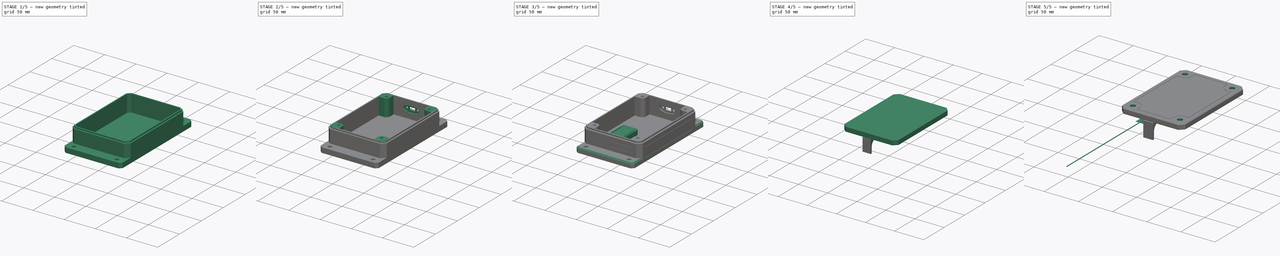
[diagram: build sequence overview — one tinted view per stage of 5, left to right]
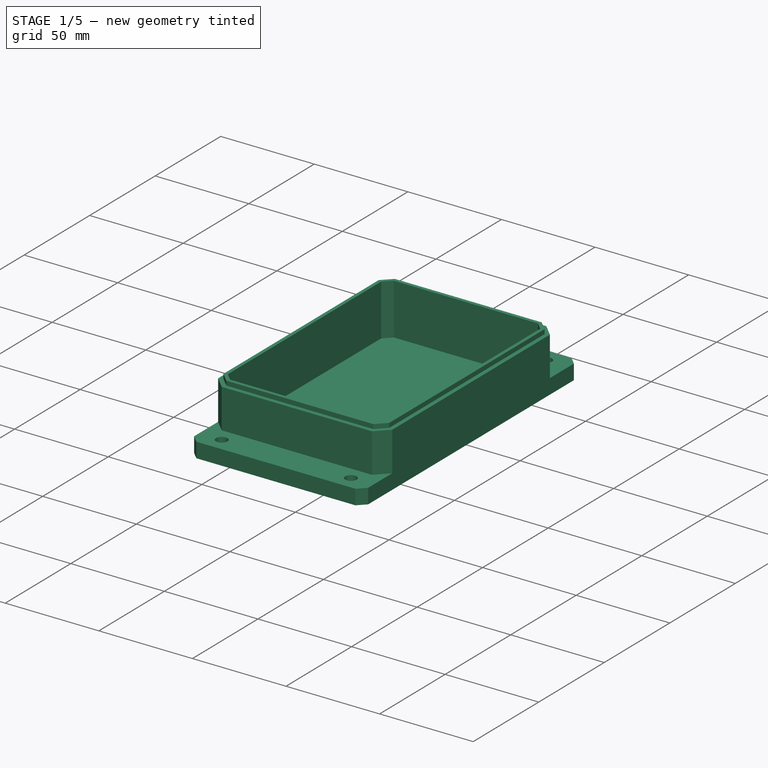
[diagram: stage 1 of 5 — iso view after this stage's code; geometry added in this stage tinted green]
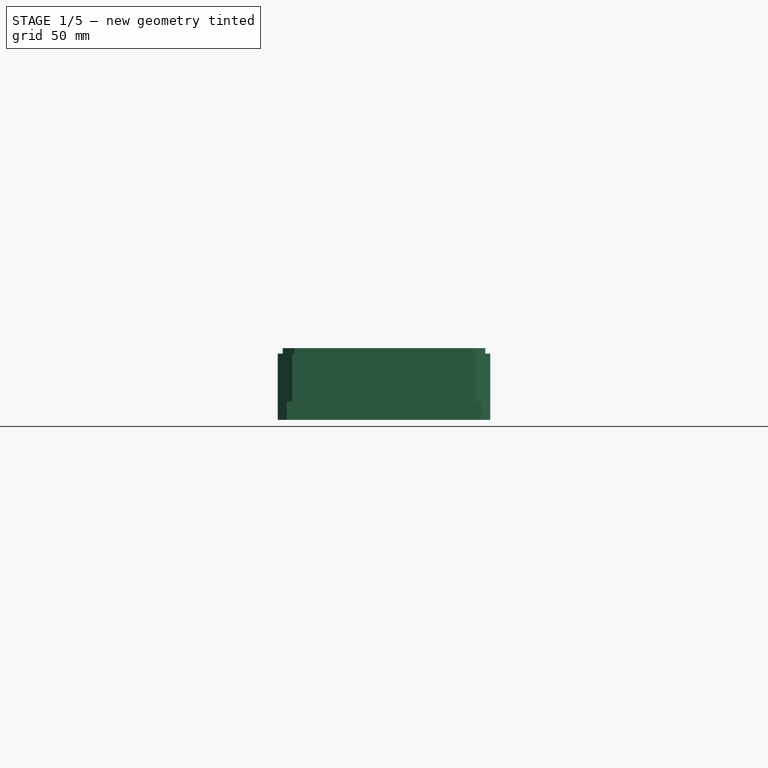
[diagram: stage 1 of 5 — front view after this stage's code; geometry added in this stage tinted green]
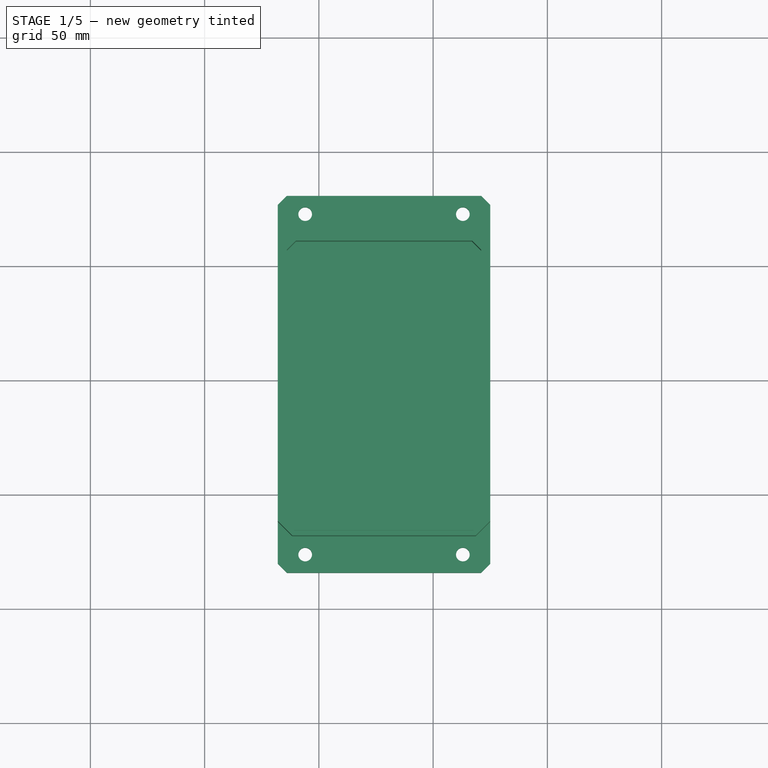
[diagram: stage 1 of 5 — top view after this stage's code; geometry added in this stage tinted green]
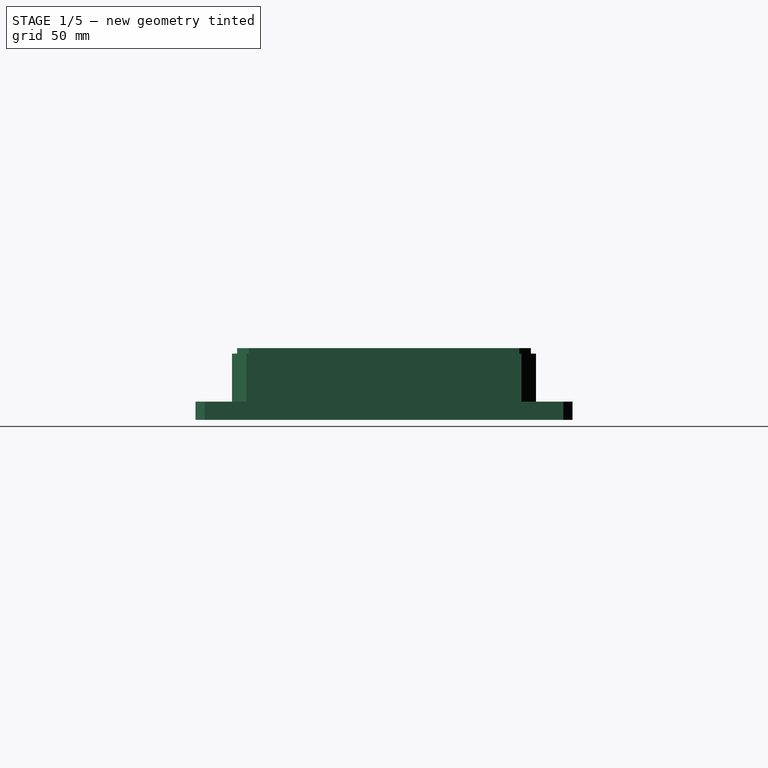
[diagram: stage 1 of 5 — right view after this stage's code; geometry added in this stage tinted green]
FCSTD DOCUMENT  (FreeCAD 0.21R33771 (Git))
Label: assembly
License: All rights reserved
LicenseURL: http://en.wikipedia.org/wiki/All_rights_reserved
objects: Part::Feature×259, App::Part×51, PartDesign::Mirrored×31, Sketcher::SketchObject×23, PartDesign::MultiTransform×14, PartDesign::Pocket×12, PartDesign::Pad×10, PartDesign::Plane×7, PartDesign::Chamfer×6, PartDesign::Body×5, PartDesign::ShapeBinder×4, PartDesign::Line×2, PartDesign::Thickness×1, Spreadsheet::Sheet×1, PartDesign::Hole×1, PartDesign::Fillet×1
note: 407 computed .brp shape members not serialized (recipe doc carries the construction recipe); baked Part::Feature solids carry a one-line shape summary decoded from their .brp

FEATURE [PartDesign::Body] Body001  label="cable"
  Group = -> [Sketch001,Pad001]
  Origin = -> Origin050
  Tip = -> Pad001
FEATURE [App::Part] Part  label="antenna"
  Group = -> [Body,Body001]
  Origin = -> Origin051
  Placement = pos=(44,-12,16) rot=(0,0,1;0rad)
FEATURE [PartDesign::ShapeBinder] ShapeBinder  label="boron_ShapeBinder"
  Support = -> [Part__Feature]
  TraceSupport = true
FEATURE [PartDesign::Line] DatumLine  label="boron_y_centerline"
  AttacherType = Attacher::AttachEngineLine
  Length = 20
  MapMode = 43
  Placement = pos=(11.43,-9e-16,0) rot=(0,0.707107,0.707107;3.14159rad)
  ResizeMode = 0
  Support = -> [ShapeBinder]
FEATURE [PartDesign::Line] DatumLine001  label="boron_x_centerline"
  AttacherType = Attacher::AttachEngineLine
  Length = 20
  MapMode = 43
  Placement = pos=(1.8e-15,25.4,0) rot=(0.57735,0.57735,0.57735;2.0944rad)
  ResizeMode = 0
  Support = -> [ShapeBinder]
FEATURE [Sketcher::SketchObject] Sketch002
  ExternalGeometry = -> [DatumLine001,DatumLine,ShapeBinder]
  FullyConstrained = true
  MapMode = 5
  Support = -> [XY_Plane053]
  sketch-geometry (4):
    g0: LineSegment StartX=-14 StartY=110.8 StartZ=0 EndX=71 EndY=110.8 EndZ=0
    g1: LineSegment StartX=71 StartY=110.8 StartZ=0 EndX=71 EndY=-14.2 EndZ=0
    g2: LineSegment StartX=71 StartY=-14.2 StartZ=0 EndX=-14 EndY=-14.2 EndZ=0
    g3: LineSegment StartX=-14 StartY=-14.2 StartZ=0 EndX=-14 EndY=110.8 EndZ=0
  constraints (12):
    c: Coincident(g0,g1)
    c: Coincident(g1,g2)
    c: Coincident(g2,g3)
    c: Coincident(g3,g0)
    c: Horizontal(g0)
    c: Horizontal(g2)
    c: Vertical(g1)
    c: Vertical(g3)
    c: DistanceX(g0,g0) = 85
    c: DistanceY(g1,g1) = 125
    c: DistanceY(g-5,g0) = 60
    c: DistanceX(g2,g-1) = 14
FEATURE [PartDesign::Pad] Pad002
  Direction = (0,0,1)
  Length = 15
  Length2 = 10
  Profile = -> Sketch002
  ReferenceAxis = -> Sketch002 [N_Axis]
  Refine = true
  Type = 4
FEATURE [PartDesign::Plane] DatumPlane001  label="boron_yz_centerplane"
  Length = 183.166
  MapMode = 45
  Placement = pos=(11.43,6.0325,0) rot=(0.57735,0.57735,0.57735;2.0944rad)
  ResizeMode = 0
  Support = -> [ShapeBinder]
  Width = 68.1659
FEATURE [PartDesign::Plane] DatumPlane002  label="boron_yx_centerplane"
  Length = 114.142
  MapMode = 45
  Placement = pos=(20.32,25.4,0) rot=(0,0.707107,0.707107;3.14159rad)
  ResizeMode = 0
  Support = -> [ShapeBinder]
  Width = 64.1421
FEATURE [PartDesign::Chamfer] Chamfer
  Angle = 45
  Base = -> Pad002 [Edge5,Edge2,Edge8,Edge1]
  BaseFeature = -> Pad002
  ChamferType = 0
  FlipDirection = false
  Refine = true
  Size = 4
  Size2 = 1
  SupportTransform = false
  UseAllEdges = false
FEATURE [PartDesign::Thickness] Thickness
  Base = -> Chamfer [Face5]
  BaseFeature = -> Chamfer
  Intersection = false
  Join = 1
  Mode = 0
  Refine = true
  SupportTransform = false
  Value = 4
FEATURE [Sketcher::SketchObject] Sketch003
  ExternalGeometry = -> [Thickness]
  FullyConstrained = true
  MapMode = 5
  Placement = pos=(0,0,-14) rot=(1,0,0;3.14159rad)
  Support = -> [Thickness]
  sketch-geometry (6):
    g0: LineSegment StartX=-18 StartY=11.8569 StartZ=0 EndX=-11.6569 EndY=18.2 EndZ=0
    g1: LineSegment StartX=-11.6569 StartY=18.2 StartZ=0 EndX=68.6569 EndY=18.2 EndZ=0
    g2: LineSegment StartX=68.6569 StartY=18.2 StartZ=0 EndX=75 EndY=11.8569 EndZ=0
    g3: LineSegment StartX=75 StartY=11.8569 StartZ=0 EndX=75 EndY=34.2 EndZ=0
    g4: LineSegment StartX=75 StartY=34.2 StartZ=0 EndX=-18 EndY=34.2 EndZ=0
    g5: LineSegment StartX=-18 StartY=34.2 StartZ=0 EndX=-18 EndY=11.8569 EndZ=0
  constraints (14):
    c: Coincident(g-3,g0)
    c: Coincident(g0,g-4)
    c: Coincident(g0,g1)
    c: Coincident(g1,g-5)
    c: Coincident(g1,g2)
    c: Coincident(g2,g-5)
    c: Coincident(g2,g3)
    c: Vertical(g3)
    c: Coincident(g3,g4)
    c: Horizontal(g4)
    c: Coincident(g4,g5)
    c: Coincident(g5,g0)
    c: Vertical(g5)
    c: DistanceY(g1,g3) = 16
FEATURE [PartDesign::Plane] DatumPlane  label="xz_centerplane"
  Length = 114.142
  MapMode = 45
  Placement = pos=(68.6569,48.3,15) rot=(0,0.707107,0.707107;3.14159rad)
  ResizeMode = 0
  Support = -> [Thickness]
  Width = 64.1421
FEATURE [PartDesign::Plane] DatumPlane003  label="yz_centerplane"
  Length = 183.166
  MapMode = 45
  Placement = pos=(28.5,-11.8569,15) rot=(0.57735,0.57735,0.57735;2.0944rad)
  ResizeMode = 0
  Support = -> [Thickness]
  Width = 68.1659
FEATURE [PartDesign::Pad] Pad003
  BaseFeature = -> Thickness
  Direction = (0,0,-1)
  Length = 8
  Length2 = 10
  Profile = -> Sketch003
  ReferenceAxis = -> Sketch003 [N_Axis]
  Refine = true
  Reversed = true
  Type = 0
FEATURE [PartDesign::Mirrored] Mirrored
  BaseFeature = -> Pad003
  MirrorPlane = -> DatumPlane
  Originals = -> [Pad003]
  Refine = true
FEATURE [PartDesign::Chamfer] Chamfer001
  Angle = 45
  Base = -> Mirrored [Edge53,Edge54,Edge56,Edge57]
  BaseFeature = -> Mirrored
  ChamferType = 0
  FlipDirection = false
  Refine = true
  Size = 4
  Size2 = 1
  SupportTransform = false
  UseAllEdges = false
FEATURE [Sketcher::SketchObject] Sketch004
  ExternalGeometry = -> [DatumPlane003,DatumPlane,Chamfer001]
  FullyConstrained = true
  MapMode = 5
  Placement = pos=(0,0,15) rot=(0,0,1;0rad)
  Support = -> [Chamfer001]
  expr: Constraints[23] = .Constraints.wall_t / 2 - 0.2 mm
  sketch-geometry (9):
    g0: LineSegment StartX=28.5 StartY=110.8 StartZ=0 EndX=67 EndY=110.8 EndZ=0
    g1: LineSegment StartX=67 StartY=110.8 StartZ=0 EndX=71 EndY=106.8 EndZ=0
    g2: LineSegment StartX=71 StartY=106.8 StartZ=0 EndX=71 EndY=48.3 EndZ=0
    g3: LineSegment StartX=71 StartY=48.3 StartZ=0 EndX=72.8 EndY=48.3 EndZ=0
    g4: LineSegment StartX=72.8 StartY=48.3 StartZ=0 EndX=72.8 EndY=107.546 EndZ=0
    g5: LineSegment StartX=72.8 StartY=107.546 StartZ=0 EndX=67.7456 EndY=112.6 EndZ=0
    g6: LineSegment StartX=67.7456 StartY=112.6 StartZ=0 EndX=28.5 EndY=112.6 EndZ=0
    g7: LineSegment StartX=28.5 StartY=112.6 StartZ=0 EndX=28.5 EndY=110.8 EndZ=0
    g8: LineSegment StartX=67 StartY=110.8 StartZ=0 EndX=68.6569 EndY=114.8 EndZ=0
  constraints (25):
    c: Coincident(g0,g-5)
    c: Horizontal(g0)
    c: Coincident(g0,g1)
    c: Coincident(g1,g-5)
    c: Coincident(g1,g2)
    c: Vertical(g2)
    c: Coincident(g2,g3)
    c: Horizontal(g3)
    c: Coincident(g3,g4)
    c: Vertical(g4)
    c: Coincident(g4,g5)
    c: Coincident(g5,g6)
    c: Horizontal(g6)
    c: Coincident(g6,g7)
    c: Coincident(g7,g0)
    c: Vertical(g7)
    c: PointOnObject(g0,g-3)
    c: Parallel(g1,g5)
    c: PointOnObject(g2,g-4)
    c: Equal(g7,g3)
    c: Coincident(g8,g0)
    c: Coincident(g8,g-6)
    c: PointOnObject(g5,g8)
    c: DistanceY(g0,g5) = 1.8
    c: DistanceY(g0,g8) = 4  'wall_t'
FEATURE [PartDesign::Pad] Pad004
  BaseFeature = -> Chamfer001
  Direction = (0,0,1)
  Length = 2.4
  Length2 = 10
  Profile = -> Sketch004
  ReferenceAxis = -> Sketch004 [N_Axis]
  Refine = true
  Type = 0
FEATURE [PartDesign::Mirrored] Mirrored001
  MirrorPlane = -> DatumPlane003
  Refine = true
FEATURE [PartDesign::Mirrored] Mirrored002
  MirrorPlane = -> DatumPlane
  Refine = true
FEATURE [PartDesign::MultiTransform] MultiTransform
  BaseFeature = -> Pad004
  Originals = -> [Pad004]
  Refine = true
  Transformations = -> [Mirrored001,Mirrored002]
FEATURE [Sketcher::SketchObject] Sketch005
  ExternalGeometry = -> [MultiTransform]
  FullyConstrained = true
  MapMode = 5
  Placement = pos=(0,2.6e-15,-6) rot=(0,0,1;0rad)
  Support = -> [MultiTransform]
  sketch-geometry (1):
    g0: Circle CenterX=63 CenterY=122.8 CenterZ=0 NormalX=0 NormalY=0 NormalZ=1 AngleXU=0 Radius=3
  constraints (3):
    c: Diameter(g0) = 6
    c: DistanceX(g0,g-4) = 12
    c: DistanceY(g0,g-3) = 8
FEATURE [PartDesign::Pocket] Pocket
  BaseFeature = -> MultiTransform
  Direction = (0,4e-16,-1)
  Length = 5
  Length2 = 5
  Profile = -> Sketch005
  ReferenceAxis = -> Sketch005 [N_Axis]
  Refine = true
  Type = 1
FEATURE [PartDesign::Mirrored] Mirrored003
  MirrorPlane = -> DatumPlane003
  Refine = true
FEATURE [PartDesign::Mirrored] Mirrored004
  MirrorPlane = -> DatumPlane
  Refine = true
FEATURE [PartDesign::MultiTransform] MultiTransform001
  BaseFeature = -> Pocket
  Originals = -> [Pocket]
  Refine = true
  Transformations = -> [Mirrored003,Mirrored004]
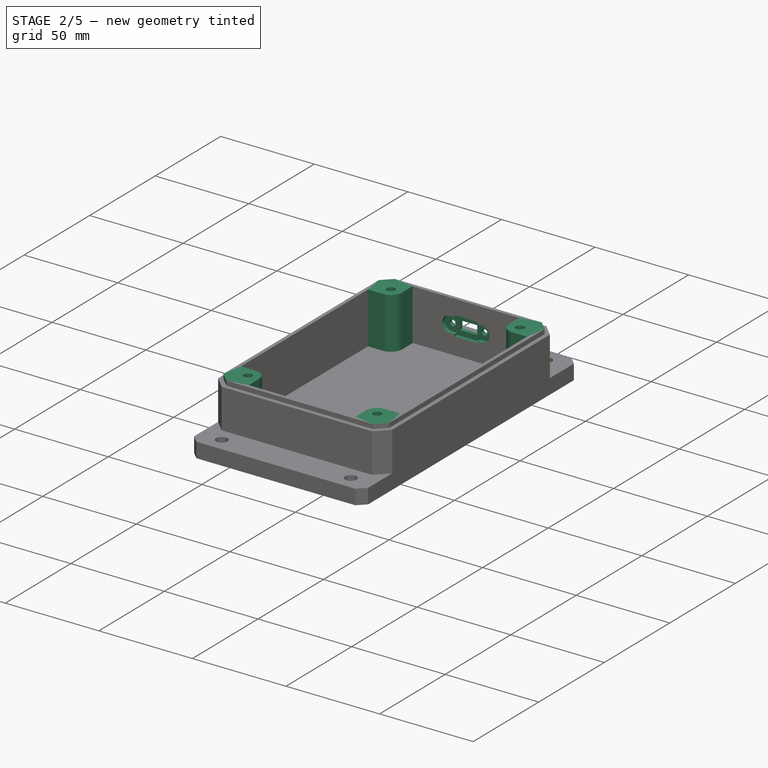
[diagram: stage 2 of 5 — iso view after this stage's code; geometry added in this stage tinted green]
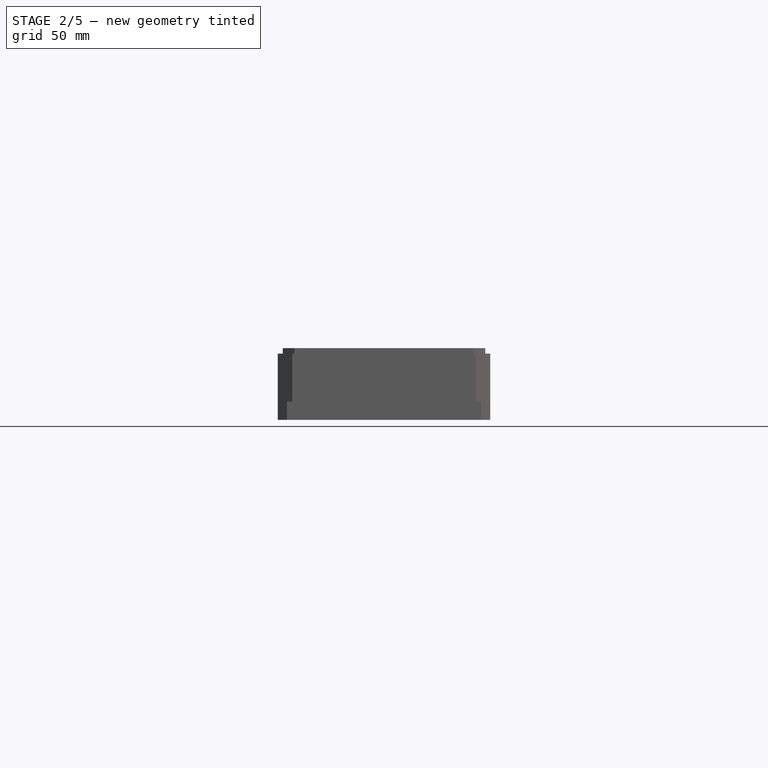
[diagram: stage 2 of 5 — front view after this stage's code; geometry added in this stage tinted green]
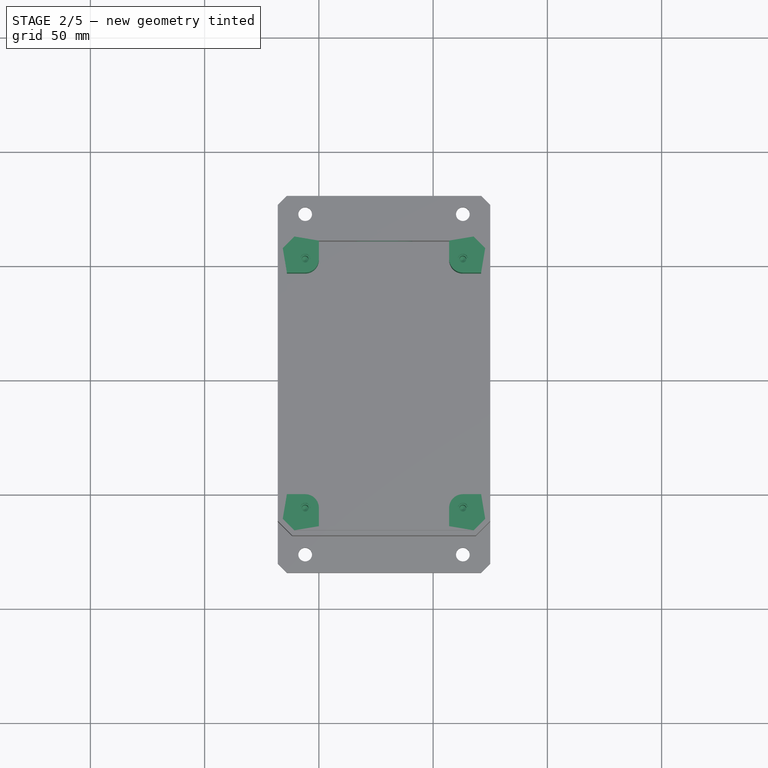
[diagram: stage 2 of 5 — top view after this stage's code; geometry added in this stage tinted green]
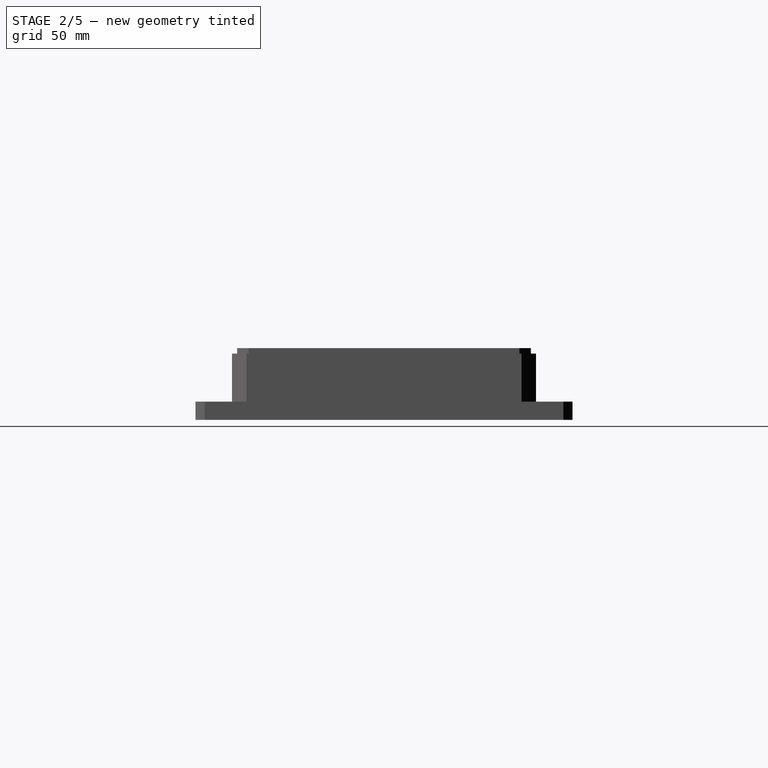
[diagram: stage 2 of 5 — right view after this stage's code; geometry added in this stage tinted green]
FEATURE [Sketcher::SketchObject] Sketch006
  ExternalGeometry = -> [MultiTransform001]
  FullyConstrained = true
  MapMode = 5
  Placement = pos=(0,0,-10) rot=(0,0,1;0rad)
  Support = -> [MultiTransform001]
  sketch-geometry (7):
    g0: LineSegment StartX=67 StartY=110.8 StartZ=0 EndX=71 EndY=106.8 EndZ=0
    g1: LineSegment StartX=71 StartY=106.8 StartZ=0 EndX=71 EndY=96.8 EndZ=0
    g2: LineSegment StartX=71 StartY=96.8 StartZ=0 EndX=63 EndY=96.8 EndZ=0
    g3: LineSegment StartX=57 StartY=102.8 StartZ=0 EndX=57 EndY=110.8 EndZ=0
    g4: LineSegment StartX=57 StartY=110.8 StartZ=0 EndX=67 EndY=110.8 EndZ=0
    g5: ArcOfCircle CenterX=63 CenterY=102.8 CenterZ=0 NormalX=0 NormalY=0 NormalZ=1 AngleXU=0 Radius=6 StartAngle=3.14159 EndAngle=4.71239
    g6: Circle CenterX=63 CenterY=102.8 CenterZ=0 NormalX=0 NormalY=0 NormalZ=1 AngleXU=0 Radius=3
  constraints (17):
    c: Coincident(g-3,g0)
    c: Coincident(g0,g-3)
    c: Coincident(g0,g1)
    c: Vertical(g1)
    c: Coincident(g1,g2)
    c: Horizontal(g2)
    c: Vertical(g3)
    c: Coincident(g3,g4)
    c: Coincident(g4,g0)
    c: Horizontal(g4)
    c: Tangent(g3,g5) = 1.5708
    c: Tangent(g2,g5) = 1.5708
    c: Coincident(g6,g5)
    c: Diameter(g6) = 6
    c: Diameter(g5) = 12
    c: Equal(g3,g2)
    c: DistanceX(g5,g0) = 8
FEATURE [PartDesign::Pad] Pad005
  BaseFeature = -> MultiTransform001
  Direction = (0,0,1)
  Length = 10
  Length2 = 10
  Profile = -> Sketch006
  ReferenceAxis = -> Sketch006 [N_Axis]
  Refine = true
  Type = 3
  UpToFace = -> MultiTransform001 [Face31]
FEATURE [PartDesign::Mirrored] Mirrored005
  MirrorPlane = -> DatumPlane003
  Refine = true
FEATURE [PartDesign::Mirrored] Mirrored006
  MirrorPlane = -> DatumPlane
  Refine = true
FEATURE [PartDesign::MultiTransform] MultiTransform002
  BaseFeature = -> Pad005
  Originals = -> [Pad005]
  Refine = true
  Transformations = -> [Mirrored005,Mirrored006]
FEATURE [Sketcher::SketchObject] Sketch007
  ExternalGeometry = -> [MultiTransform002]
  FullyConstrained = true
  MapMode = 5
  Placement = pos=(0,-3.8e-15,17.4) rot=(0,0,1;0rad)
  Support = -> [MultiTransform002]
  expr: Constraints[1] = Spreadsheet.tap_hole
  sketch-geometry (1):
    g0: Circle CenterX=63 CenterY=102.8 CenterZ=0 NormalX=0 NormalY=0 NormalZ=1 AngleXU=0 Radius=1.5
  constraints (2):
    c: Coincident(g0,g-3)
    c: Diameter(g0) = 3
FEATURE [Spreadsheet::Sheet] Spreadsheet
  cells = A1='Enclosure Fasteners; A2='Clearance Hole; B2(clearance_hole)=4.3; A3='Tap Hole; B3(tap_hole)=3; A4='Head Pocket Diameter; B4(head_diameter)=7.4; A5='Head Pocket Depth; B5(head_depth)=2.8; A7='Decor; A8='width; B8(decor_width)=1.2; A9='depth; B9(decor_depth)=0.4
FEATURE [PartDesign::Hole] Hole
  BaseFeature = -> MultiTransform002
  CustomThreadClearance = 0
  Depth = 25
  DepthType = 0
  Diameter = 3
  DrillForDepth = false
  DrillPoint = 1
  DrillPointAngle = 118
  HoleCutCountersinkAngle = 90
  HoleCutCustomValues = false
  HoleCutDepth = 6
  HoleCutDiameter = 4.3
  HoleCutType = 1
  ModelThread = false
  Profile = -> Sketch007
  Refine = true
  Tapered = false
  TaperedAngle = 90
  ThreadClass = 0
  ThreadDepth = 25
  ThreadDepthType = 0
  ThreadDirection = 0
  ThreadFit = 0
  ThreadSize = 0
  ThreadType = 0
  Threaded = false
  UseCustomThreadClearance = false
  expr: Diameter = Spreadsheet.tap_hole
  expr: HoleCutDiameter = Spreadsheet.clearance_hole
FEATURE [PartDesign::Mirrored] Mirrored007
  MirrorPlane = -> DatumPlane003
  Refine = true
FEATURE [PartDesign::Mirrored] Mirrored008
  MirrorPlane = -> DatumPlane
  Refine = true
FEATURE [PartDesign::MultiTransform] MultiTransform003
  BaseFeature = -> Hole
  Originals = -> [Hole]
  Refine = true
  Transformations = -> [Mirrored007,Mirrored008]
FEATURE [Sketcher::SketchObject] Sketch008
  ExternalGeometry = -> [DatumPlane003,MultiTransform003]
  FullyConstrained = true
  MapMode = 5
  Placement = pos=(0,114.8,0) rot=(0,0.707107,0.707107;3.14159rad)
  Support = -> [MultiTransform003]
  expr: Constraints[4] = 17 / 2
  sketch-geometry (2):
    g0: Circle CenterX=-20 CenterY=4.305 CenterZ=0 NormalX=0 NormalY=0 NormalZ=1 AngleXU=0 Radius=1.6
    g1: GeomPoint X=-28.5 Y=0 Z=0
  constraints (6):
    c: Diameter(g0) = 3.2
    c: DistanceX(g-3,g-3) = 0
    c: PointOnObject(g1,g-3)
    c: PointOnObject(g1,g-1)
    c: DistanceX(g1,g0) = 8.5
    c: DistanceY(g-4,g0) = 10.305
FEATURE [PartDesign::Pocket] Pocket001
  BaseFeature = -> MultiTransform003
  Direction = (0,-1,2e-16)
  Length = 5
  Length2 = 5
  Profile = -> Sketch008
  ReferenceAxis = -> Sketch008 [N_Axis]
  Refine = true
  Type = 2
FEATURE [PartDesign::Mirrored] Mirrored009
  BaseFeature = -> Pocket001
  MirrorPlane = -> DatumPlane003
  Originals = -> [Pocket001]
  Refine = true
FEATURE [Sketcher::SketchObject] Sketch009
  ExternalGeometry = -> [DatumPlane003,Mirrored009]
  FullyConstrained = true
  MapMode = 5
  Placement = pos=(0,114.8,0) rot=(0,0.707107,0.707107;3.14159rad)
  Support = -> [Mirrored009]
  sketch-geometry (6):
    g0: LineSegment StartX=-33.175 StartY=6.68 StartZ=0 EndX=-23.825 EndY=6.68 EndZ=0
    g1: LineSegment StartX=-23.825 StartY=6.68 StartZ=0 EndX=-23.825 EndY=1.93 EndZ=0
    g2: LineSegment StartX=-23.825 StartY=1.93 StartZ=0 EndX=-33.175 EndY=1.93 EndZ=0
    g3: LineSegment StartX=-33.175 StartY=1.93 StartZ=0 EndX=-33.175 EndY=6.68 EndZ=0
    g4: LineSegment StartX=-37 StartY=4.305 StartZ=0 EndX=-20 EndY=4.305 EndZ=0
    g5: GeomPoint X=-28.5 Y=6.68 Z=0
  constraints (14):
    c: Coincident(g0,g1)
    c: Coincident(g1,g2)
    c: Coincident(g2,g3)
    c: Coincident(g3,g0)
    c: Horizontal(g0)
    c: Horizontal(g2)
    c: Vertical(g3)
    c: Coincident(g4,g-5)
    c: Coincident(g4,g-4)
    c: Symmetric(g0,g1,g4)
    c: PointOnObject(g5,g-3)
    c: Symmetric(g0,g0,g5)
    c: DistanceY(g1,g1) = 4.75
    c: DistanceX(g0,g0) = 9.35
FEATURE [PartDesign::Pocket] Pocket002
  BaseFeature = -> Mirrored009
  Direction = (0,-1,2e-16)
  Length = 5
  Length2 = 5
  Profile = -> Sketch009
  ReferenceAxis = -> Sketch009 [N_Axis]
  Refine = true
  Type = 2
FEATURE [Sketcher::SketchObject] Sketch010
  ExternalGeometry = -> [DatumPlane003,Pocket002]
  FullyConstrained = true
  MapMode = 5
  Placement = pos=(0,110.8,0) rot=(1,0,0;1.5708rad)
  Support = -> [Pocket002]
  expr: Constraints[12] = 10.3 / 2
  expr: Constraints[13] = 12.25 / 2
  sketch-geometry (7):
    g0: LineSegment StartX=28.5 StartY=9.455 StartZ=0 EndX=22.375 EndY=9.455 EndZ=0
    g1: LineSegment StartX=22.375 StartY=9.455 StartZ=0 EndX=22.375 EndY=8.455 EndZ=0
    g2: LineSegment StartX=22.375 StartY=8.455 StartZ=0 EndX=20 EndY=8.455 EndZ=0
    g3: LineSegment StartX=15.85 StartY=4.305 StartZ=0 EndX=28.5 EndY=4.305 EndZ=0
    g4: LineSegment StartX=28.5 StartY=4.305 StartZ=0 EndX=28.5 EndY=9.455 EndZ=0
    g5: ArcOfCircle CenterX=20 CenterY=4.305 CenterZ=0 NormalX=0 NormalY=0 NormalZ=1 AngleXU=0 Radius=4.15 StartAngle=1.5708 EndAngle=3.14159
    g6: LineSegment StartX=28.5 StartY=4.305 StartZ=0 EndX=37 EndY=4.305 EndZ=0
  constraints (19):
    c: Horizontal(g0)
    c: Coincident(g0,g1)
    c: Vertical(g1)
    c: Coincident(g1,g2)
    c: Horizontal(g2)
    c: Horizontal(g3)
    c: Coincident(g3,g4)
    c: Coincident(g4,g0)
    c: Coincident(g3,g5)
    c: Tangent(g5,g2) = -1.5708
    c: PointOnObject(g0,g-3)
    c: Vertical(g4)
    c: DistanceY(g4,g4) = 5.15
    c: DistanceX(g0,g0) = 6.125
    c: Coincident(g5,g-4)
    c: Diameter(g5) = 8.3
    c: PointOnObject(g5,g3)
    c: Coincident(g6,g3)
    c: Coincident(g6,g-5)
FEATURE [PartDesign::Pocket] Pocket003
  BaseFeature = -> Pocket002
  Direction = (0,1,-2e-16)
  Length = 0
  Length2 = 5
  Offset = -2
  Profile = -> Sketch010
  ReferenceAxis = -> Sketch010 [N_Axis]
  Refine = true
  Type = 3
  UpToFace = -> Pocket002 [Face6]
FEATURE [PartDesign::Mirrored] Mirrored010
  MirrorPlane = -> Sketch010 [Axis0]
  Refine = true
FEATURE [PartDesign::Mirrored] Mirrored011
  MirrorPlane = -> DatumPlane003
  Refine = true
FEATURE [PartDesign::MultiTransform] MultiTransform004
  BaseFeature = -> Pocket003
  Originals = -> [Pocket003]
  Refine = true
  Transformations = -> [Mirrored010,Mirrored011]
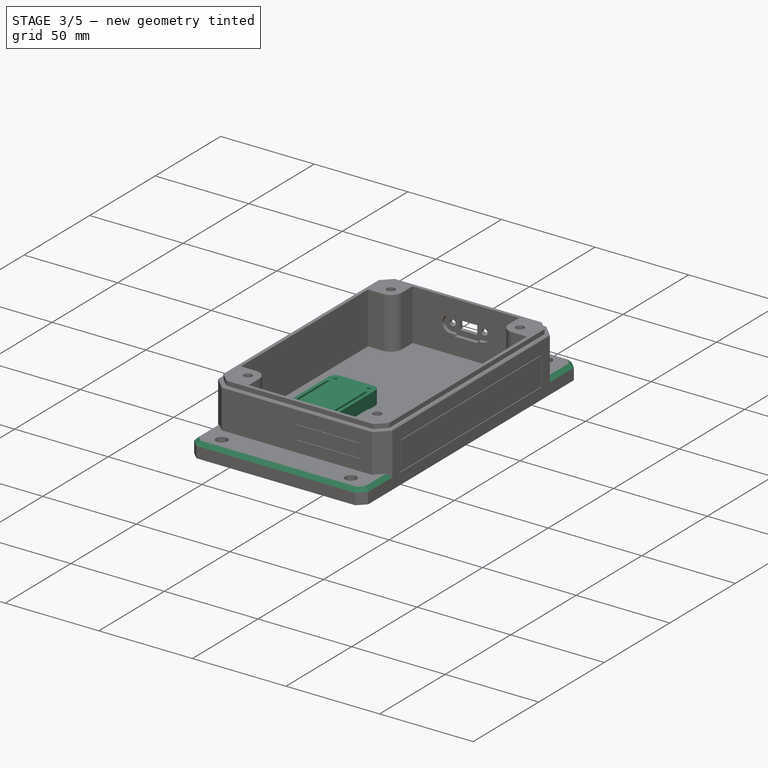
[diagram: stage 3 of 5 — iso view after this stage's code; geometry added in this stage tinted green]
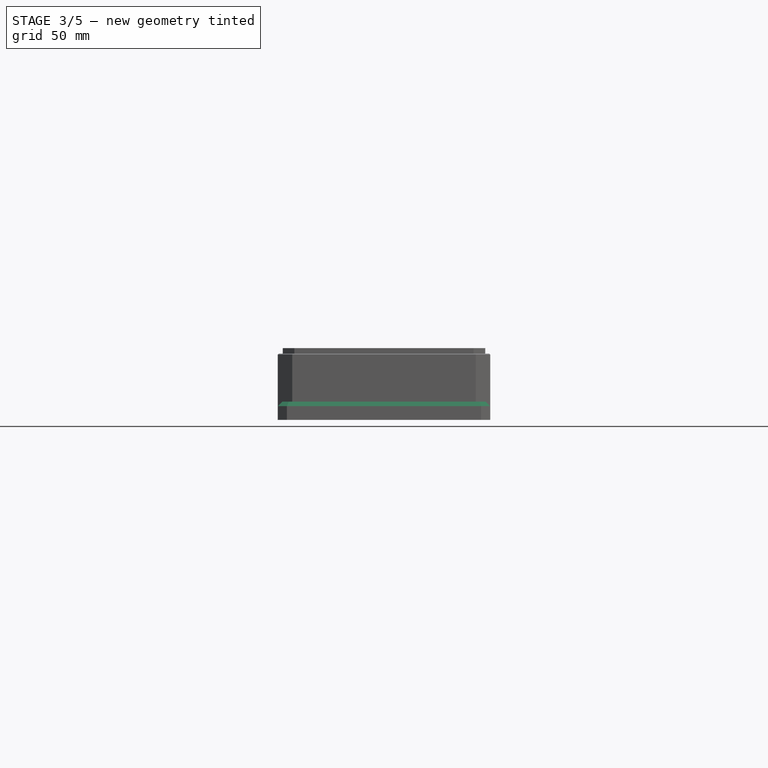
[diagram: stage 3 of 5 — front view after this stage's code; geometry added in this stage tinted green]
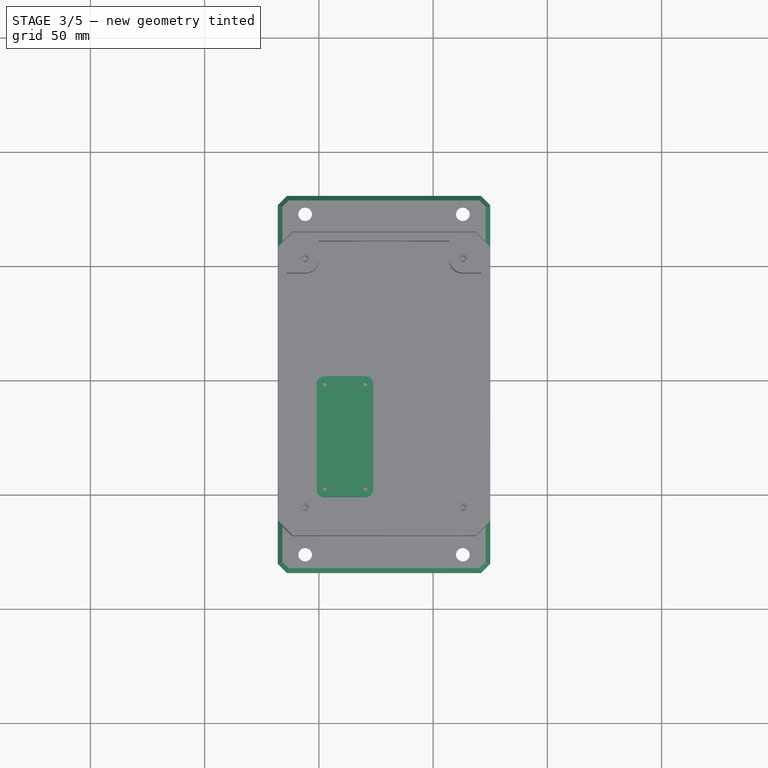
[diagram: stage 3 of 5 — top view after this stage's code; geometry added in this stage tinted green]
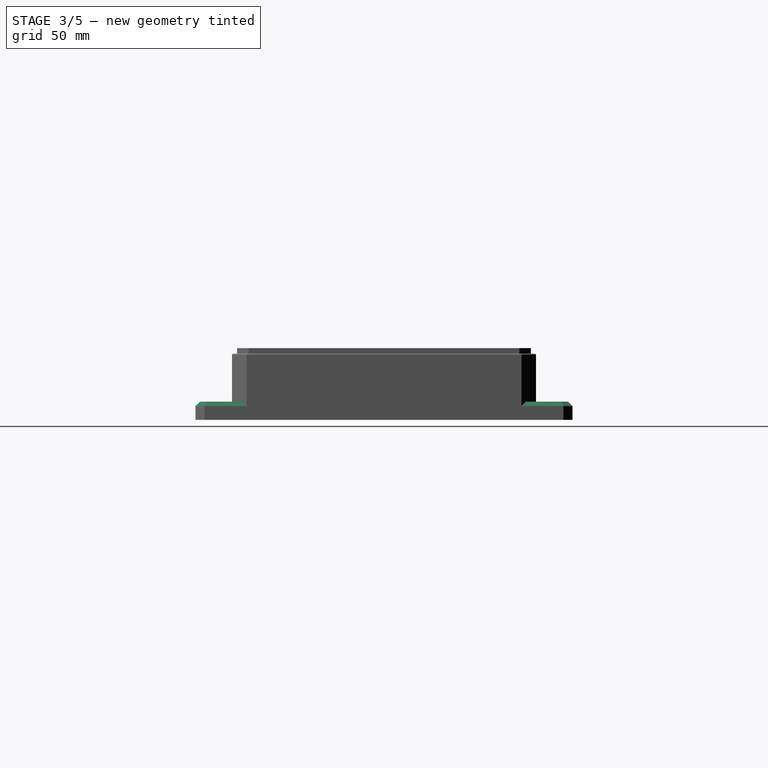
[diagram: stage 3 of 5 — right view after this stage's code; geometry added in this stage tinted green]
FEATURE [PartDesign::Fillet] Fillet
  Base = -> MultiTransform004 [Edge148,Edge163,Edge158,Edge153]
  BaseFeature = -> MultiTransform004
  Radius = 0.8
  Refine = true
  SupportTransform = false
  UseAllEdges = false
FEATURE [Sketcher::SketchObject] Sketch011
  ExternalGeometry = -> [ShapeBinder,DatumPlane001,DatumPlane002]
  FullyConstrained = true
  MapMode = 5
  Placement = pos=(0,0,-10) rot=(0,0,1;0rad)
  Support = -> [Fillet]
  sketch-geometry (6):
    g0: LineSegment StartX=11.43 StartY=25.4 StartZ=0 EndX=23.86 EndY=25.4 EndZ=0
    g1: LineSegment StartX=23.86 StartY=25.4 StartZ=0 EndX=23.86 EndY=48.26 EndZ=0
    g2: LineSegment StartX=20.32 StartY=51.8 StartZ=0 EndX=11.43 EndY=51.8 EndZ=0
    g3: LineSegment StartX=11.43 StartY=51.8 StartZ=0 EndX=11.43 EndY=25.4 EndZ=0
    g4: ArcOfCircle CenterX=20.32 CenterY=48.26 CenterZ=0 NormalX=0 NormalY=0 NormalZ=1 AngleXU=0 Radius=3.54 StartAngle=6e-16 EndAngle=1.5708
    g5: Circle CenterX=20.32 CenterY=48.26 CenterZ=0 NormalX=0 NormalY=0 NormalZ=1 AngleXU=0 Radius=0.9
  constraints (15):
    c: Coincident(g0,g1)
    c: Coincident(g2,g3)
    c: Coincident(g3,g0)
    c: Horizontal(g0)
    c: Horizontal(g2)
    c: Vertical(g1)
    c: Vertical(g3)
    c: Tangent(g2,g4) = -1.5708
    c: Tangent(g1,g4) = -1.5708
    c: PointOnObject(g0,g-4)
    c: PointOnObject(g0,g-5)
    c: Coincident(g4,g-3)
    c: DistanceX(g-3,g1) = 1
    c: Coincident(g5,g4)
    c: Diameter(g5) = 1.8
FEATURE [PartDesign::Pad] Pad006
  BaseFeature = -> Fillet
  Direction = (0,0,1)
  Length = 10
  Length2 = 10
  Offset = -2.6
  Profile = -> Sketch011
  ReferenceAxis = -> Sketch011 [N_Axis]
  Refine = true
  Type = 3
  UpToFace = -> ShapeBinder [Face1]
FEATURE [PartDesign::Mirrored] Mirrored012
  MirrorPlane = -> DatumPlane001
  Refine = true
FEATURE [PartDesign::Mirrored] Mirrored013
  MirrorPlane = -> DatumPlane002
  Refine = true
FEATURE [PartDesign::MultiTransform] MultiTransform005
  BaseFeature = -> Pad006
  Originals = -> [Pad006]
  Refine = true
  Transformations = -> [Mirrored012,Mirrored013]
FEATURE [Sketcher::SketchObject] Sketch012
  ExternalGeometry = -> [ShapeBinder]
  FullyConstrained = true
  MapMode = 5
  Placement = pos=(0,-6e-16,-2.6) rot=(0,0,1;0rad)
  Support = -> [MultiTransform005]
  sketch-geometry (4):
    g0: ArcOfCircle CenterX=1.27 CenterY=44.45 CenterZ=0 NormalX=0 NormalY=0 NormalZ=1 AngleXU=0 Radius=0.6 StartAngle=-1.8e-15 EndAngle=3.14159
    g1: ArcOfCircle CenterX=1.27 CenterY=6.35 CenterZ=0 NormalX=0 NormalY=0 NormalZ=1 AngleXU=0 Radius=0.6 StartAngle=3.14159 EndAngle=6.28319
    g2: LineSegment StartX=0.67 StartY=44.45 StartZ=0 EndX=0.67 EndY=6.35 EndZ=0
    g3: LineSegment StartX=1.87 StartY=6.35 StartZ=0 EndX=1.87 EndY=44.45 EndZ=0
  constraints (8):
    c: Tangent(g0,g2) = -1.5708
    c: Tangent(g2,g1) = -1.5708
    c: Tangent(g1,g3) = -1.5708
    c: Tangent(g3,g0) = -1.5708
    c: Equal(g0,g1)
    c: Coincident(g0,g-3)
    c: Coincident(g1,g-4)
    c: Diameter(g0) = 1.2
FEATURE [PartDesign::Pocket] Pocket004
  BaseFeature = -> MultiTransform005
  Direction = (0,-2e-16,-1)
  Length = 6.5
  Length2 = 5
  Profile = -> Sketch012
  ReferenceAxis = -> Sketch012 [N_Axis]
  Refine = true
  Type = 0
FEATURE [PartDesign::Mirrored] Mirrored014
  BaseFeature = -> Pocket004
  MirrorPlane = -> DatumPlane001
  Originals = -> [Pocket004]
  Refine = true
FEATURE [PartDesign::Chamfer] Chamfer003
  Angle = 45
  Base = -> Mirrored014 [Edge198,Edge196,Edge200,Edge199,Edge197,Edge194,Edge193,Edge195]
  BaseFeature = -> Mirrored014
  ChamferType = 0
  FlipDirection = false
  Refine = true
  Size = 0.4
  Size2 = 1
  SupportTransform = false
  UseAllEdges = false
FEATURE [PartDesign::Chamfer] Chamfer004
  Angle = 45
  Base = -> Chamfer003 [Edge54,Edge99,Edge100,Edge101,Edge67,Edge57,Edge106,Edge107,Edge108,Edge65]
  BaseFeature = -> Chamfer003
  ChamferType = 0
  FlipDirection = false
  Refine = true
  Size = 2
  Size2 = 1
  SupportTransform = false
  UseAllEdges = false
FEATURE [Sketcher::SketchObject] Sketch019
  ExternalGeometry = -> [Chamfer004,DatumPlane]
  FullyConstrained = true
  MapMode = 5
  Placement = pos=(75,0,-3e-14) rot=(0.57735,0.57735,0.57735;2.0944rad)
  Support = -> [Chamfer004]
  expr: Constraints[18] = Spreadsheet.decor_width
  sketch-geometry (12):
    g0: LineSegment StartX=48.3 StartY=8.6 StartZ=0 EndX=102.457 EndY=8.6 EndZ=0
    g1: LineSegment StartX=102.457 StartY=8.6 StartZ=0 EndX=102.457 EndY=-8 EndZ=0
    g2: LineSegment StartX=102.457 StartY=-8 StartZ=0 EndX=48.3 EndY=-8 EndZ=0
    g3: LineSegment StartX=48.3 StartY=7.4 StartZ=0 EndX=101.257 EndY=7.4 EndZ=0
    g4: LineSegment StartX=101.257 StartY=7.4 StartZ=0 EndX=101.257 EndY=-6.8 EndZ=0
    g5: LineSegment StartX=101.257 StartY=-6.8 StartZ=0 EndX=48.3 EndY=-6.8 EndZ=0
    g6: LineSegment StartX=48.3 StartY=7.4 StartZ=0 EndX=48.3 EndY=8.6 EndZ=0
    g7: LineSegment StartX=48.3 StartY=-6.8 StartZ=0 EndX=48.3 EndY=-8 EndZ=0
    g8: LineSegment StartX=102.457 StartY=-8 StartZ=0 EndX=102.457 EndY=-14 EndZ=0
    g9: LineSegment StartX=102.457 StartY=8.6 StartZ=0 EndX=102.457 EndY=14.6 EndZ=0
    g10: LineSegment StartX=102.457 StartY=14.6 StartZ=0 EndX=108.457 EndY=14.6 EndZ=0
    g11: LineSegment StartX=101.257 StartY=7.4 StartZ=0 EndX=102.457 EndY=7.4 EndZ=0
  constraints (35):
    c: Coincident(g0,g1)
    c: Coincident(g1,g2)
    c: Horizontal(g0)
    c: Horizontal(g2)
    c: Vertical(g1)
    c: PointOnObject(g0,g-5)
    c: Coincident(g3,g4)
    c: Coincident(g4,g5)
    c: Horizontal(g3)
    c: Horizontal(g5)
    c: Vertical(g4)
    c: Coincident(g6,g3)
    c: Coincident(g6,g0)
    c: Vertical(g6)
    c: Coincident(g7,g5)
    c: Coincident(g7,g2)
    c: Vertical(g7)
    c: Equal(g6,g7)
    c: DistanceY(g6,g6) = 1.2
    c: Coincident(g8,g1)
    c: PointOnObject(g8,g-4)
    c: Vertical(g8)
    c: Coincident(g9,g0)
    c: Vertical(g9)
    c: Coincident(g10,g9)
    c: Coincident(g10,g-3)
    c: Horizontal(g10)
    c: Equal(g9,g8)
    c: DistanceY(g9,g9) = 6
    c: DistanceX(g0,g10) = 6
    c: Coincident(g11,g3)
    c: PointOnObject(g11,g1)
    c: Horizontal(g11)
    c: Equal(g11,g6)
    c: PointOnObject(g5,g-5)
FEATURE [PartDesign::Pocket] Pocket009
  BaseFeature = -> Chamfer004
  Direction = (-1,0,4e-16)
  Length = 0.4
  Length2 = 5
  Profile = -> Sketch019
  ReferenceAxis = -> Sketch019 [N_Axis]
  Refine = true
  Type = 0
  expr: Length = Spreadsheet.decor_depth
FEATURE [PartDesign::Mirrored] Mirrored025
  MirrorPlane = -> DatumPlane
  Refine = true
FEATURE [PartDesign::Mirrored] Mirrored026
  MirrorPlane = -> DatumPlane003
  Refine = true
FEATURE [PartDesign::MultiTransform] MultiTransform011
  BaseFeature = -> Pocket009
  Originals = -> [Pocket009]
  Refine = true
  Transformations = -> [Mirrored025,Mirrored026]
FEATURE [Sketcher::SketchObject] Sketch020
  ExternalGeometry = -> [DatumPlane003,MultiTransform011]
  FullyConstrained = true
  MapMode = 5
  Placement = pos=(0,-18.2,0) rot=(1,0,0;1.5708rad)
  Support = -> [MultiTransform011]
  expr: Constraints[34] = Spreadsheet.decor_width
  sketch-geometry (13):
    g0: LineSegment StartX=28.5 StartY=8.6 StartZ=0 EndX=62.6569 EndY=8.6 EndZ=0
    g1: LineSegment StartX=62.6569 StartY=8.6 StartZ=0 EndX=62.6569 EndY=3.34737e-11 EndZ=0
    g2: LineSegment StartX=62.6569 StartY=3.34737e-11 StartZ=0 EndX=28.5 EndY=3.34737e-11 EndZ=0
    g3: LineSegment StartX=61.4569 StartY=1.2 StartZ=0 EndX=28.5 EndY=1.2 EndZ=0
    g4: LineSegment StartX=28.5 StartY=7.4 StartZ=0 EndX=61.4569 EndY=7.4 EndZ=0
    g5: LineSegment StartX=61.4569 StartY=7.4 StartZ=0 EndX=61.4569 EndY=1.2 EndZ=0
    g6: LineSegment StartX=28.5 StartY=8.6 StartZ=0 EndX=28.5 EndY=7.4 EndZ=0
    g7: LineSegment StartX=28.5 StartY=1.2 StartZ=0 EndX=28.5 EndY=3.34737e-11 EndZ=0
    g8: LineSegment StartX=61.4569 StartY=7.4 StartZ=0 EndX=62.6569 EndY=7.4 EndZ=0
    g9: LineSegment StartX=62.6569 StartY=8.6 StartZ=0 EndX=62.6569 EndY=14.6 EndZ=0
    g10: LineSegment StartX=62.6569 StartY=14.6 StartZ=0 EndX=68.6569 EndY=14.6 EndZ=0
    g11: LineSegment StartX=62.6569 StartY=3.34737e-11 StartZ=0 EndX=62.6569 EndY=-6 EndZ=0
    g12: LineSegment StartX=62.6569 StartY=-6 StartZ=0 EndX=68.6569 EndY=-6 EndZ=0
  constraints (37):
    c: Coincident(g0,g1)
    c: Coincident(g1,g2)
    c: Horizontal(g0)
    c: Horizontal(g2)
    c: Vertical(g1)
    c: Coincident(g4,g5)
    c: Coincident(g5,g3)
    c: Horizontal(g3)
    c: Horizontal(g4)
    c: Vertical(g5)
    c: Coincident(g6,g0)
    c: Coincident(g7,g3)
    c: Coincident(g7,g2)
    c: Coincident(g4,g6)
    c: Vertical(g6)
    c: Vertical(g7)
    c: PointOnObject(g0,g-3)
    c: PointOnObject(g2,g-3)
    c: Equal(g6,g7)
    c: Coincident(g8,g4)
    c: PointOnObject(g8,g1)
    c: Horizontal(g8)
    c: Coincident(g9,g0)
    c: Vertical(g9)
    c: Coincident(g10,g9)
    c: Coincident(g10,g-4)
    c: Coincident(g11,g1)
    c: Vertical(g11)
    c: Coincident(g12,g11)
    c: Coincident(g12,g-4)
    c: Horizontal(g10)
    c: Horizontal(g12)
    c: Equal(g9,g11)
    c: Equal(g6,g8)
    c: DistanceY(g6,g6) = 1.2
    c: DistanceY(g9,g9) = 6
    c: DistanceX(g10,g10) = 6
FEATURE [PartDesign::Pocket] Pocket010
  BaseFeature = -> MultiTransform011
  Direction = (0,1,-2e-16)
  Length = 0.4
  Length2 = 5
  Profile = -> Sketch020
  ReferenceAxis = -> Sketch020 [N_Axis]
  Refine = true
  Type = 0
  expr: Length = Spreadsheet.decor_depth
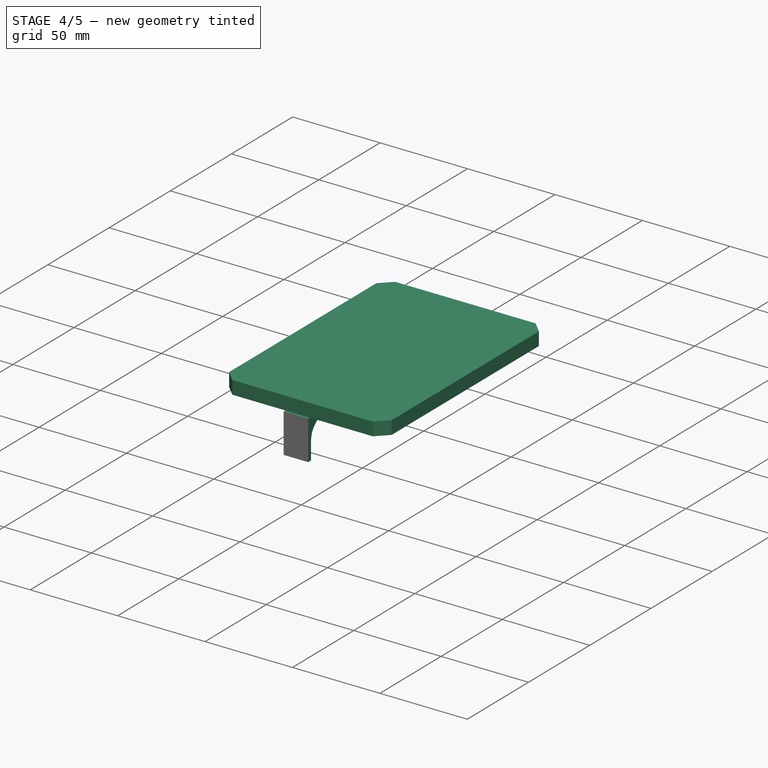
[diagram: stage 4 of 5 — iso view after this stage's code; geometry added in this stage tinted green]
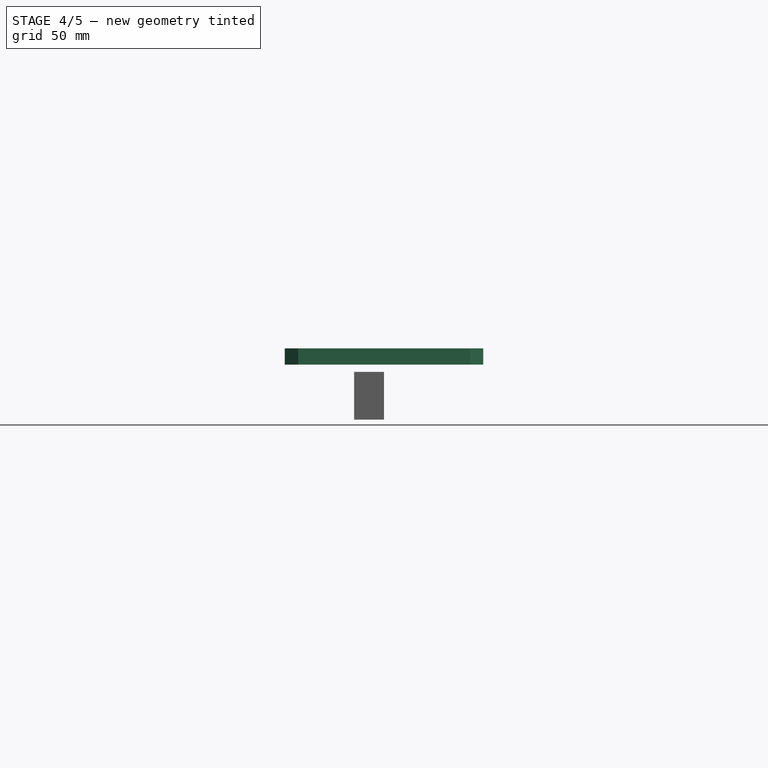
[diagram: stage 4 of 5 — front view after this stage's code; geometry added in this stage tinted green]
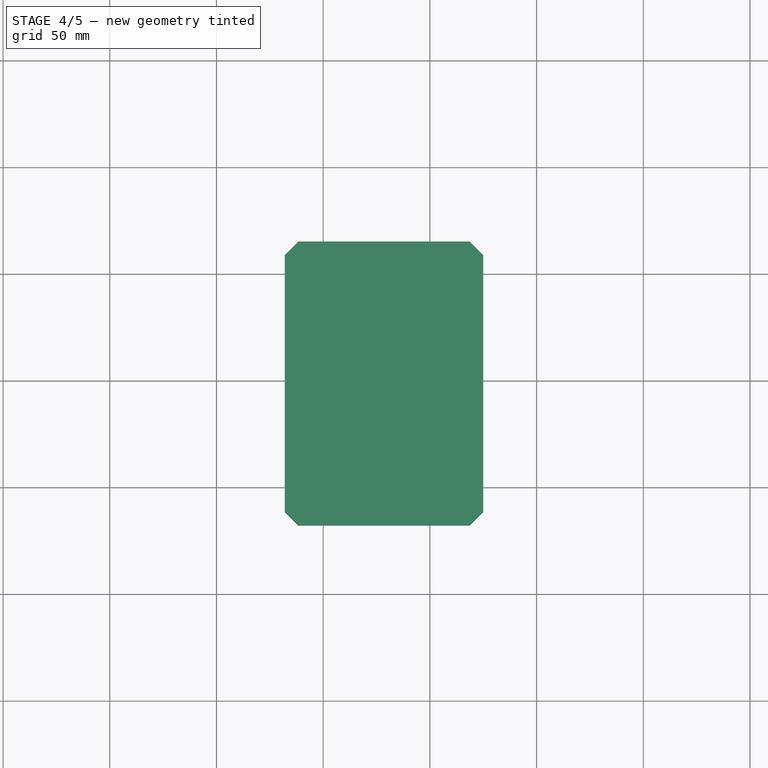
[diagram: stage 4 of 5 — top view after this stage's code; geometry added in this stage tinted green]
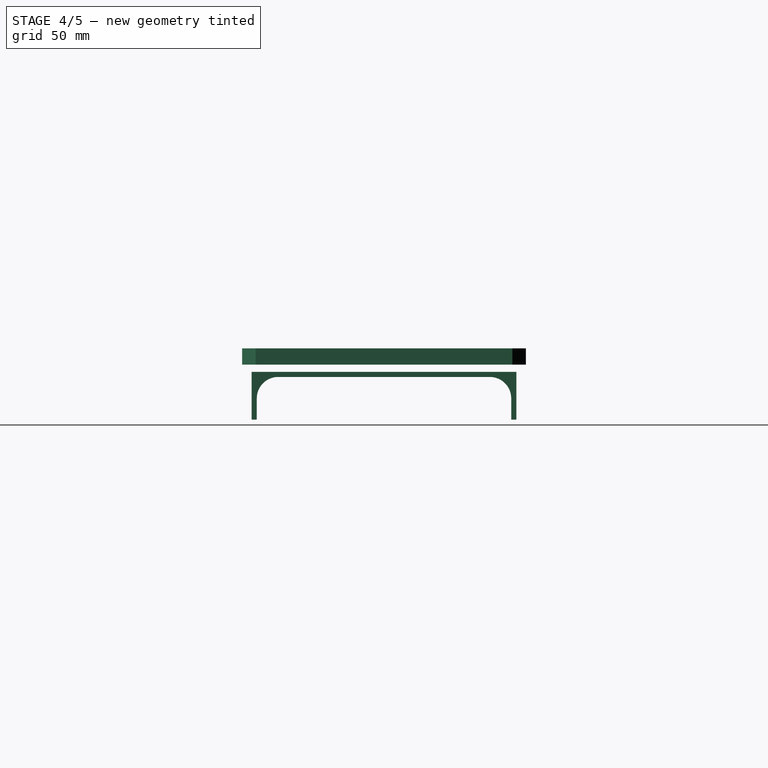
[diagram: stage 4 of 5 — right view after this stage's code; geometry added in this stage tinted green]
FEATURE [PartDesign::ShapeBinder] ShapeBinder001  label="bottom_shapebinder"
  Support = -> [Mirrored014]
  TraceSupport = true
FEATURE [PartDesign::ShapeBinder] ShapeBinder002  label="bottom_shapebinder001"
  Support = -> [Mirrored014]
  TraceSupport = false
FEATURE [Sketcher::SketchObject] Sketch013
  ExternalGeometry = -> [ShapeBinder002]
  FullyConstrained = true
  MapMode = 5
  Placement = pos=(0,-3.8e-15,17.4) rot=(0,0,1;0rad)
  Support = -> [ShapeBinder001]
  sketch-geometry (4):
    g0: LineSegment StartX=75 StartY=114.8 StartZ=0 EndX=-18 EndY=114.8 EndZ=0
    g1: LineSegment StartX=-18 StartY=114.8 StartZ=0 EndX=-18 EndY=-18.2 EndZ=0
    g2: LineSegment StartX=-18 StartY=-18.2 StartZ=0 EndX=75 EndY=-18.2 EndZ=0
    g3: LineSegment StartX=75 StartY=-18.2 StartZ=0 EndX=75 EndY=114.8 EndZ=0
  constraints (12):
    c: Coincident(g0,g1)
    c: Coincident(g1,g2)
    c: Coincident(g2,g3)
    c: Coincident(g3,g0)
    c: Horizontal(g0)
    c: Horizontal(g2)
    c: Vertical(g1)
    c: Vertical(g3)
    c: PointOnObject(g-3,g0)
    c: PointOnObject(g-5,g1)
    c: PointOnObject(g-4,g2)
    c: PointOnObject(g-6,g3)
FEATURE [PartDesign::Pad] Pad007
  Direction = (0,-2e-16,1)
  Length = 6
  Length2 = 10
  Profile = -> Sketch013
  ReferenceAxis = -> Sketch013 [N_Axis]
  Refine = true
  Type = 0
FEATURE [PartDesign::Plane] DatumPlane004  label="b_yz_centerplane"
  Length = 156.521
  MapMode = 45
  Placement = pos=(28.5,-18.2,23.4) rot=(0.57735,0.57735,0.57735;2.0944rad)
  ResizeMode = 0
  Support = -> [Pad007]
  Width = 66.7212
FEATURE [PartDesign::Plane] DatumPlane005  label="b_xz_centerplane"
  Length = 114.142
  MapMode = 45
  Placement = pos=(75,48.3,23.4) rot=(0,0.707107,0.707107;3.14159rad)
  ResizeMode = 0
  Support = -> [Pad007]
  Width = 64.1421
FEATURE [Sketcher::SketchObject] Sketch014
  ExternalGeometry = -> [ShapeBinder002]
  FullyConstrained = true
  MapMode = 5
  Placement = pos=(0,0,17.4) rot=(1,0,0;3.14159rad)
  Support = -> [Pad007]
  sketch-geometry (3):
    g0: LineSegment StartX=68.6569 StartY=18.2 StartZ=0 EndX=75 EndY=18.2 EndZ=0
    g1: LineSegment StartX=75 StartY=18.2 StartZ=0 EndX=75 EndY=11.8569 EndZ=0
    g2: LineSegment StartX=75 StartY=11.8569 StartZ=0 EndX=68.6569 EndY=18.2 EndZ=0
  constraints (7):
    c: Coincident(g-3,g0)
    c: Horizontal(g0)
    c: Coincident(g0,g1)
    c: Coincident(g1,g-3)
    c: Coincident(g1,g2)
    c: Coincident(g2,g0)
    c: Vertical(g1)
FEATURE [PartDesign::Pocket] Pocket005
  BaseFeature = -> Pad007
  Direction = (0,0,1)
  Length = 5
  Length2 = 5
  Profile = -> Sketch014
  ReferenceAxis = -> Sketch014 [N_Axis]
  Refine = true
  Type = 1
FEATURE [PartDesign::Mirrored] Mirrored015
  MirrorPlane = -> DatumPlane004
  Refine = true
FEATURE [PartDesign::Mirrored] Mirrored016
  MirrorPlane = -> DatumPlane005
  Refine = true
FEATURE [PartDesign::MultiTransform] MultiTransform006
  BaseFeature = -> Pocket005
  Originals = -> [Pocket005]
  Refine = true
  Transformations = -> [Mirrored015,Mirrored016]
FEATURE [Sketcher::SketchObject] Sketch015
  ExternalGeometry = -> [ShapeBinder002,DatumPlane004,DatumPlane005]
  FullyConstrained = true
  MapMode = 5
  Placement = pos=(0,0,17.4) rot=(1,0,0;3.14159rad)
  Support = -> [MultiTransform006]
  sketch-geometry (9):
    g0: LineSegment StartX=28.5 StartY=18.2 StartZ=0 EndX=68.6569 EndY=18.2 EndZ=0
    g1: LineSegment StartX=68.6569 StartY=18.2 StartZ=0 EndX=75 EndY=11.8569 EndZ=0
    g2: LineSegment StartX=75 StartY=11.8569 StartZ=0 EndX=75 EndY=-48.3 EndZ=0
    g3: LineSegment StartX=75 StartY=-48.3 StartZ=0 EndX=73 EndY=-48.3 EndZ=0
    g4: LineSegment StartX=73 StartY=-48.3 StartZ=0 EndX=73 EndY=11.0284 EndZ=0
    g5: LineSegment StartX=73 StartY=11.0284 StartZ=0 EndX=67.8284 EndY=16.2 EndZ=0
    g6: LineSegment StartX=67.8284 StartY=16.2 StartZ=0 EndX=28.5 EndY=16.2 EndZ=0
    g7: LineSegment StartX=28.5 StartY=16.2 StartZ=0 EndX=28.5 EndY=18.2 EndZ=0
    g8: LineSegment StartX=67.7456 StartY=16 StartZ=0 EndX=68.6569 EndY=18.2 EndZ=0
  constraints (24):
    c: PointOnObject(g0,g-5)
    c: Horizontal(g0)
    c: Coincident(g0,g1)
    c: Coincident(g1,g2)
    c: Vertical(g2)
    c: Coincident(g2,g3)
    c: Horizontal(g3)
    c: Coincident(g3,g4)
    c: Vertical(g4)
    c: Coincident(g4,g5)
    c: Coincident(g5,g6)
    c: Horizontal(g6)
    c: Coincident(g6,g7)
    c: Coincident(g7,g0)
    c: Vertical(g7)
    c: Coincident(g0,g-4)
    c: Coincident(g1,g-4)
    c: PointOnObject(g2,g-6)
    c: Parallel(g5,g-3)
    c: Equal(g7,g3)
    c: Coincident(g8,g-3)
    c: Coincident(g8,g0)
    c: PointOnObject(g5,g8)
    c: DistanceX(g-3,g4) = 0.2
FEATURE [PartDesign::Pad] Pad008
  BaseFeature = -> MultiTransform006
  Direction = (0,0,-1)
  Length = 10
  Length2 = 10
  Offset = -0.8
  Profile = -> Sketch015
  ReferenceAxis = -> Sketch015 [N_Axis]
  Refine = true
  Type = 3
  UpToFace = -> ShapeBinder002 [Face1]
FEATURE [PartDesign::Mirrored] Mirrored017
  MirrorPlane = -> DatumPlane004
  Refine = true
FEATURE [PartDesign::Mirrored] Mirrored018
  MirrorPlane = -> DatumPlane005
  Refine = true
FEATURE [PartDesign::MultiTransform] MultiTransform007
  BaseFeature = -> Pad008
  Originals = -> [Pad008]
  Refine = true
  Transformations = -> [Mirrored017,Mirrored018]
FEATURE [PartDesign::Mirrored] Mirrored027
  MirrorPlane = -> DatumPlane003
  Refine = true
FEATURE [PartDesign::Mirrored] Mirrored028
  MirrorPlane = -> DatumPlane
  Refine = true
FEATURE [PartDesign::MultiTransform] MultiTransform012
  BaseFeature = -> Pocket010
  Originals = -> [Pocket010]
  Refine = true
  Transformations = -> [Mirrored027,Mirrored028]
FEATURE [Sketcher::SketchObject] Sketch021
  ExternalGeometry = -> [MultiTransform012,DatumPlane003]
  FullyConstrained = true
  MapMode = 5
  Placement = pos=(0,2.6e-15,-6) rot=(0,0,1;0rad)
  Support = -> [MultiTransform012]
  sketch-geometry (8):
    g0: LineSegment StartX=28.5 StartY=125.8 StartZ=0 EndX=54 EndY=125.8 EndZ=0
    g1: LineSegment StartX=54 StartY=125.8 StartZ=0 EndX=54 EndY=117.8 EndZ=0
    g2: LineSegment StartX=54 StartY=117.8 StartZ=0 EndX=28.5 EndY=117.8 EndZ=0
    g3: LineSegment StartX=28.5 StartY=117.8 StartZ=0 EndX=28.5 EndY=125.8 EndZ=0
    g4: LineSegment StartX=54 StartY=125.8 StartZ=0 EndX=54 EndY=128.8 EndZ=0
    g5: LineSegment StartX=54 StartY=117.8 StartZ=0 EndX=54 EndY=114.8 EndZ=0
    g6: LineSegment StartX=54 StartY=122.8 StartZ=0 EndX=63 EndY=122.8 EndZ=0
    g7: GeomPoint X=60 Y=122.8 Z=0
  constraints (23):
    c: Coincident(g0,g1)
    c: Coincident(g1,g2)
    c: Coincident(g2,g3)
    c: Coincident(g3,g0)
    c: Horizontal(g0)
    c: Horizontal(g2)
    c: Vertical(g1)
    c: Vertical(g3)
    c: PointOnObject(g0,g-6)
    c: Coincident(g4,g0)
    c: PointOnObject(g4,g-4)
    c: Vertical(g4)
    c: Coincident(g5,g1)
    c: PointOnObject(g5,g-5)
    c: Vertical(g5)
    c: PointOnObject(g6,g1)
    c: Coincident(g6,g-3)
    c: Horizontal(g6)
    c: PointOnObject(g7,g-3)
    c: PointOnObject(g7,g6)
    c: Equal(g4,g5)
    c: DistanceX(g6,g7) = 6
    c: DistanceY(g4,g4) = 3
FEATURE [PartDesign::Pocket] Pocket011
  BaseFeature = -> MultiTransform012
  Direction = (0,4e-16,-1)
  Length = 0.4
  Length2 = 5
  Profile = -> Sketch021
  ReferenceAxis = -> Sketch021 [N_Axis]
  Refine = true
  Type = 0
  expr: Length = Spreadsheet.decor_depth
FEATURE [PartDesign::Mirrored] Mirrored029
  MirrorPlane = -> DatumPlane003
  Refine = true
FEATURE [PartDesign::Mirrored] Mirrored030
  MirrorPlane = -> DatumPlane
  Refine = true
FEATURE [PartDesign::MultiTransform] MultiTransform013
  BaseFeature = -> Pocket011
  Originals = -> [Pocket011]
  Refine = true
  Transformations = -> [Mirrored029,Mirrored030]
FEATURE [PartDesign::Body] Body003  label="top"
  Group = -> [ShapeBinder001,Sketch013,ShapeBinder002,Pad007,DatumPlane004,DatumPlane005,Sketch014,Pocket005,MultiTransform006,Mirrored015,Mirrored016,Sketch015,Pad008,MultiTransform007,Mirrored017,Mirrored018,Sketch016,Pocket006,MultiTransform008,Mirrored019,Mirrored020,Sketch017,Pocket007,MultiTransform009,Mirrored021,Mirrored022,Chamfer002,Sketch018,Pocket008,MultiTransform010,Mirrored023,Mirrored024,+1 more]
  Origin = -> Origin054
  Tip = -> Chamfer005
FEATURE [App::Part] Part001  label="enclosure"
  Group = -> [Body002,Body003]
  Origin = -> Origin052
FEATURE [PartDesign::ShapeBinder] ShapeBinder003
  Support = -> [MultiTransform013]
  TraceSupport = true
FEATURE [PartDesign::Plane] DatumPlane006
  Length = 152.28
  MapMode = 45
  Placement = pos=(28.5,110.8,-10) rot=(0.57735,0.57735,0.57735;2.0944rad)
  ResizeMode = 0
  Support = -> [ShapeBinder003]
  Width = 66.4803
FEATURE [Sketcher::SketchObject] Sketch022
  ExternalGeometry = -> [ShapeBinder003]
  FullyConstrained = true
  MapMode = 5
  Placement = pos=(28.5,110.8,-10) rot=(0.57735,0.57735,0.57735;2.0944rad)
  Support = -> [DatumPlane006]
  sketch-geometry (10):
    g0: LineSegment StartX=-124.5 StartY=0 StartZ=0 EndX=-124.5 EndY=22.4 EndZ=0
    g1: LineSegment StartX=-124.5 StartY=22.4 StartZ=0 EndX=-0.5 EndY=22.4 EndZ=0
    g2: LineSegment StartX=-0.5 StartY=22.4 StartZ=0 EndX=-0.5 EndY=0 EndZ=0
    g3: LineSegment StartX=-0.5 StartY=0 StartZ=0 EndX=-2.9 EndY=0 EndZ=0
    g4: LineSegment StartX=-2.9 StartY=0 StartZ=0 EndX=-2.9 EndY=10 EndZ=0
    g5: LineSegment StartX=-12.9 StartY=20 StartZ=0 EndX=-112.1 EndY=20 EndZ=0
    g6: LineSegment StartX=-122.1 StartY=10 StartZ=0 EndX=-122.1 EndY=0 EndZ=0
    g7: LineSegment StartX=-122.1 StartY=0 StartZ=0 EndX=-124.5 EndY=0 EndZ=0
    g8: ArcOfCircle CenterX=-12.9 CenterY=10 CenterZ=0 NormalX=0 NormalY=0 NormalZ=1 AngleXU=0 Radius=10 StartAngle=0 EndAngle=1.5708
    g9: ArcOfCircle CenterX=-112.1 CenterY=10 CenterZ=0 NormalX=0 NormalY=0 NormalZ=1 AngleXU=0 Radius=10 StartAngle=1.5708 EndAngle=3.14159
  constraints (28):
    c: PointOnObject(g0,g-1)
    c: Vertical(g0)
    c: Coincident(g0,g1)
    c: Horizontal(g1)
    c: Coincident(g1,g2)
    c: PointOnObject(g2,g-1)
    c: Vertical(g2)
    c: Coincident(g2,g3)
    c: PointOnObject(g3,g-1)
    c: Coincident(g3,g4)
    c: Vertical(g4)
    c: Horizontal(g5)
    c: PointOnObject(g6,g-1)
    c: Vertical(g6)
    c: Coincident(g6,g7)
    c: Coincident(g7,g0)
    c: Tangent(g5,g8) = -1.5708
    c: Tangent(g4,g8) = -1.5708
    c: Tangent(g6,g9) = -1.5708
    c: Tangent(g5,g9) = -1.5708
    c: Equal(g9,g8)
    c: DistanceY(g5,g1) = 2.4
    c: DistanceX(g3,g3) = 2.4
    c: Equal(g7,g3)
    c: DistanceX(g2,g-4) = 0.5
    c: DistanceX(g-3,g0) = 0.5
    c: DistanceY(g6,g5) = 20
    c: Diameter(g9) = 20
FEATURE [PartDesign::Pad] Pad009
  Direction = (1,4e-16,-1e-16)
  Length = 14
  Length2 = 10
  Placement = pos=(28.5,110.8,-10) rot=(0.57735,0.57735,0.57735;2.0944rad)
  Profile = -> Sketch022
  ReferenceAxis = -> Sketch022 [N_Axis]
  Refine = true
  Reversed = true
  Type = 0
FEATURE [PartDesign::Body] Body004  label="antenna_holder"
  Group = -> [ShapeBinder003,DatumPlane006,Sketch022,Pad009]
  Origin = -> Origin055
  Tip = -> Pad009
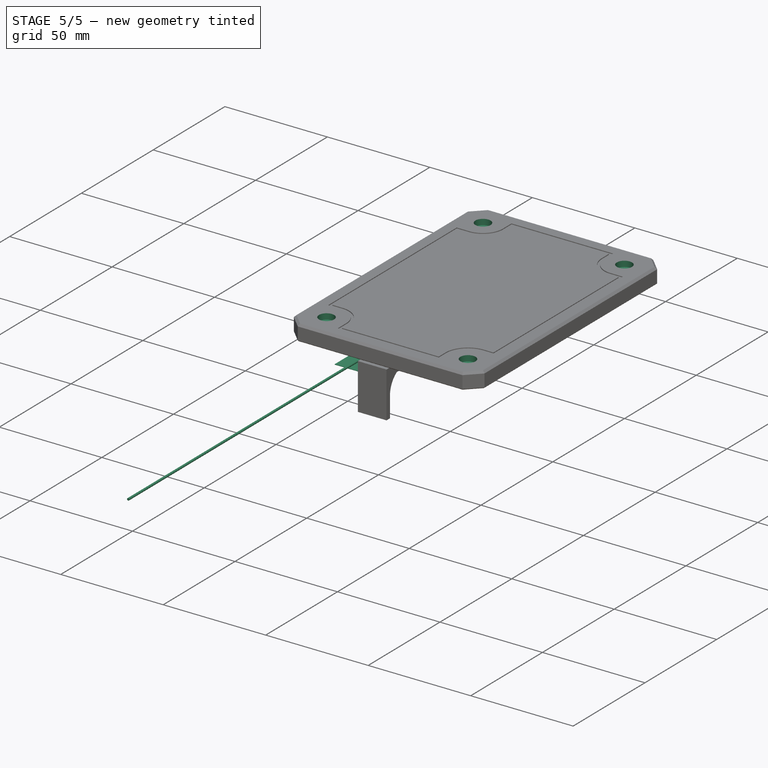
[diagram: stage 5 of 5 — iso view after this stage's code; geometry added in this stage tinted green]
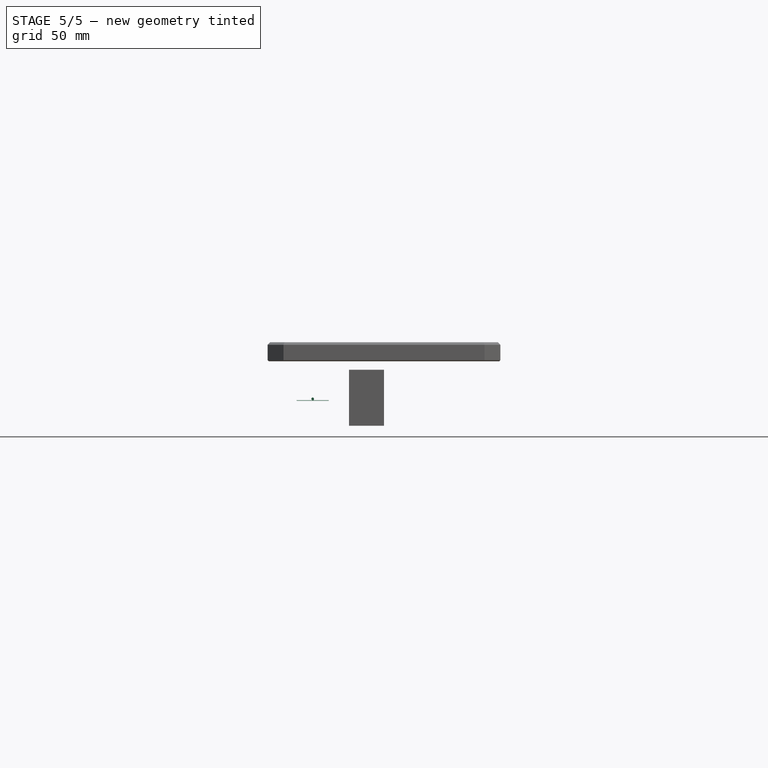
[diagram: stage 5 of 5 — front view after this stage's code; geometry added in this stage tinted green]
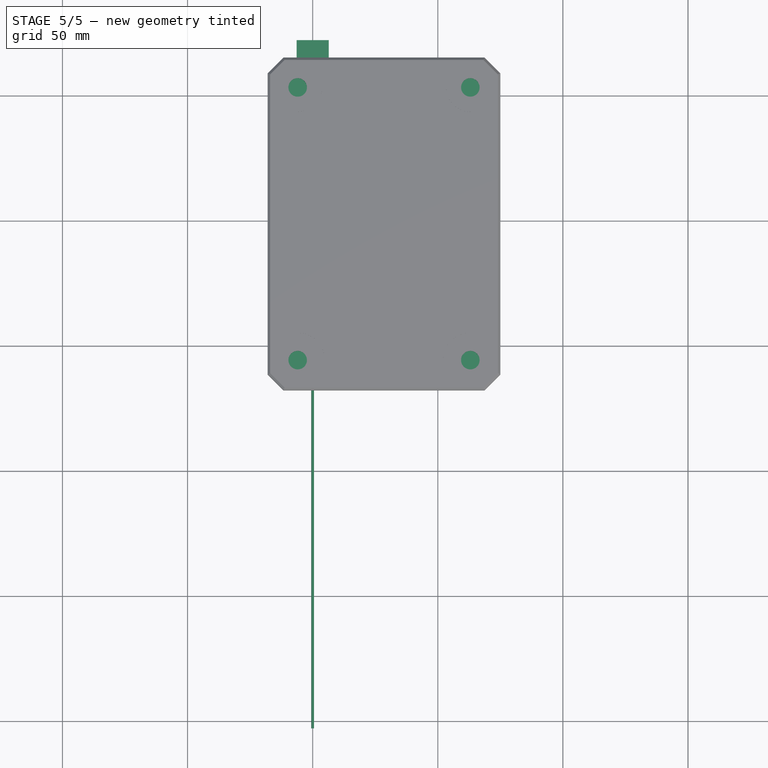
[diagram: stage 5 of 5 — top view after this stage's code; geometry added in this stage tinted green]
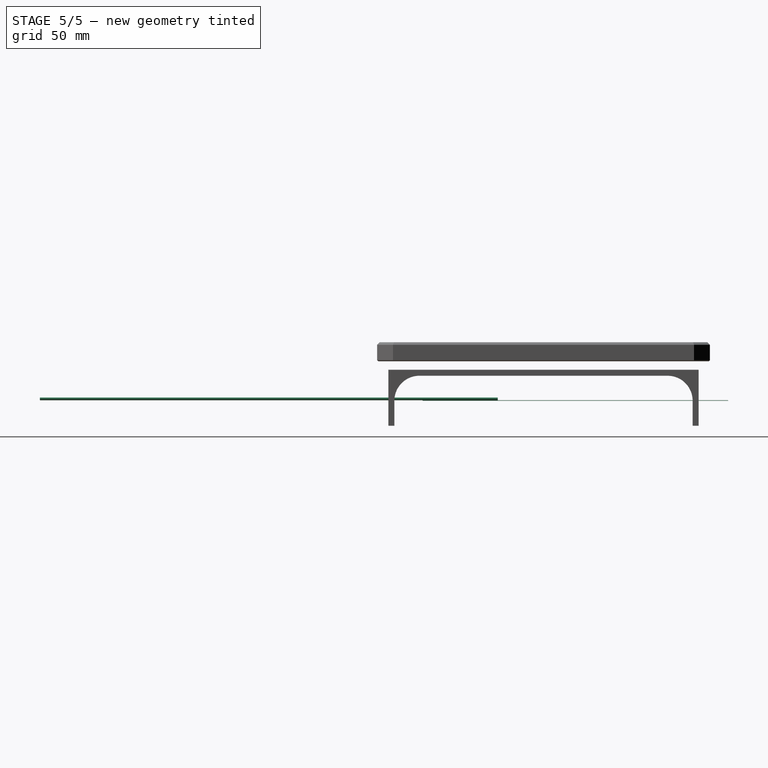
[diagram: stage 5 of 5 — right view after this stage's code; geometry added in this stage tinted green]
FEATURE [Part::Feature] Part__Feature  label="Board"
  shape: bbox 22.86 x 50.8 x 1.191 mm, 550 faces (baked)
FEATURE [Part::Feature] Part__Feature001  label="C0402_B"
  Placement = pos=(12.649,3.251,1.191) rot=(0,0,1;0rad)
  shape: bbox 1.016 x 0.508 x 0.1 mm, 6 faces (baked)
FEATURE [Part::Feature] Part__Feature002  label="C0402_B001"
  Placement = pos=(4.267,10.617,0) rot=(0,1,0;3.14159rad)
  shape: bbox 1.016 x 0.508 x 0.1 mm, 6 faces (baked)
FEATURE [Part::Feature] Part__Feature003  label="C0402_B002"
  Placement = pos=(4.267,9.855,0) rot=(0,1,0;3.14159rad)
  shape: bbox 1.016 x 0.508 x 0.1 mm, 6 faces (baked)
FEATURE [Part::Feature] Part__Feature004  label="C0402_B003"
  Placement = pos=(4.267,9.144,0) rot=(0,1,0;3.14159rad)
  shape: bbox 1.016 x 0.508 x 0.1 mm, 6 faces (baked)
FEATURE [Part::Feature] Part__Feature005  label="C0402_B004"
  Placement = pos=(16.408,13.513,0) rot=(0.707107,0.707107,0;3.14159rad)
  shape: bbox 0.508 x 1.016 x 0.1 mm, 6 faces (baked)
FEATURE [Part::Feature] Part__Feature006  label="C0402_B005"
  Placement = pos=(4.267,11.379,0) rot=(0,1,0;3.14159rad)
  shape: bbox 1.016 x 0.508 x 0.1 mm, 6 faces (baked)
FEATURE [Part::Feature] Part__Feature007  label="C0402_B006"
  Placement = pos=(8.026,42.316,0) rot=(0.707107,-0.707107,0;3.14159rad)
  shape: bbox 0.508 x 1.016 x 0.1 mm, 6 faces (baked)
FEATURE [Part::Feature] Part__Feature008  label="C0402_B007"
  Placement = pos=(8.026,43.993,0) rot=(0.707107,0.707107,0;3.14159rad)
  shape: bbox 0.508 x 1.016 x 0.1 mm, 6 faces (baked)
FEATURE [Part::Feature] Part__Feature009  label="C1210"
  Placement = pos=(4.928,14.122,0) rot=(0.707107,0.707107,0;3.14159rad)
  shape: bbox 2.5 x 3.2 x 1.55 mm, 14 faces (baked)
FEATURE [Part::Feature] Part__Feature010  label="C0402K"
  Placement = pos=(5.283,17.018,0) rot=(0,1,0;3.14159rad)
  shape: bbox 1 x 0.5 x 0.55 mm, 14 faces (baked)
FEATURE [Part::Feature] Part__Feature011  label="C0603K"
  Placement = pos=(18.339,29.108,0) rot=(0,1,0;3.14159rad)
  shape: bbox 1.6 x 0.8 x 0.92 mm, 14 faces (baked)
FEATURE [Part::Feature] Part__Feature012  label="C0603K001"
  Placement = pos=(18.339,34.239,0) rot=(1,0,0;3.14159rad)
  shape: bbox 1.6 x 0.8 x 0.92 mm, 14 faces (baked)
FEATURE [Part::Feature] Part__Feature013  label="C0603K002"
  Placement = pos=(18.339,30.328,0) rot=(0,1,0;3.14159rad)
  shape: bbox 1.6 x 0.8 x 0.92 mm, 14 faces (baked)
FEATURE [Part::Feature] Part__Feature014  label="C0402_B (1)"
  Placement = pos=(13.868,2.743,1.191) rot=(0,0,-1;1.5708rad)
  shape: bbox 0.508 x 1.016 x 0.1 mm, 6 faces (baked)
FEATURE [Part::Feature] Part__Feature015  label="C0402_B (1)001"
  Placement = pos=(5.639,17.882,0) rot=(1,0,0;3.14159rad)
  shape: bbox 1.016 x 0.508 x 0.1 mm, 6 faces (baked)
FEATURE [Part::Feature] Part__Feature016  label="C0402_B (1)002"
  Placement = pos=(11.093,7.53,0) rot=(0.939693,-0.34202,0;3.14159rad)
  shape: bbox 1.105 x 1.042 x 0.1 mm, 6 faces (baked)
FEATURE [Part::Feature] Part__Feature017  label="RESC0603_L"
  Placement = pos=(5.639,18.898,0) rot=(0,1,0;3.14159rad)
  shape: bbox 1.6 x 0.8 x 0.1 mm, 6 faces (baked)
FEATURE [Part::Feature] Part__Feature018  label="C0201_B"
  Placement = pos=(17.729,17.628,0) rot=(0,1,0;3.14159rad)
  shape: bbox 0.558 x 0.304 x 0.1 mm, 6 faces (baked)
FEATURE [Part::Feature] Part__Feature019  label="C0201_B001"
  Placement = pos=(18.847,7.061,0) rot=(0,1,0;3.14159rad)
  shape: bbox 0.558 x 0.304 x 0.1 mm, 6 faces (baked)
FEATURE [Part::Feature] Part__Feature020  label="C0201_B002"
  Placement = pos=(19.152,6.198,0) rot=(0,1,0;3.14159rad)
  shape: bbox 0.558 x 0.304 x 0.1 mm, 6 faces (baked)
FEATURE [Part::Feature] Part__Feature021  label="C0201_B003"
  Placement = pos=(13.259,31.191,1.191) rot=(0,0,1;3.14159rad)
  shape: bbox 0.558 x 0.304 x 0.1 mm, 6 faces (baked)
FEATURE [Part::Feature] Part__Feature022  label="C0201_B004"
  Placement = pos=(11.43,31.191,1.191) rot=(0,0,1;0rad)
  shape: bbox 0.558 x 0.304 x 0.1 mm, 6 faces (baked)
FEATURE [Part::Feature] Part__Feature023  label="C0201_B005"
  Placement = pos=(9.601,31.242,1.191) rot=(0,0,1;0rad)
  shape: bbox 0.558 x 0.304 x 0.1 mm, 6 faces (baked)
FEATURE [Part::Feature] Part__Feature024  label="C0201_B006"
  Placement = pos=(15.037,20.828,0) rot=(0.707107,0.707107,0;3.14159rad)
  shape: bbox 0.304 x 0.558 x 0.1 mm, 6 faces (baked)
FEATURE [Part::Feature] Part__Feature025  label="C0201_B007"
  Placement = pos=(18.898,17.628,0) rot=(0,1,0;3.14159rad)
  shape: bbox 0.558 x 0.304 x 0.1 mm, 6 faces (baked)
FEATURE [Part::Feature] Part__Feature026  label="C0201_B008"
  Placement = pos=(10.922,44.755,1.191) rot=(0,0,1;3.14159rad)
  shape: bbox 0.558 x 0.304 x 0.1 mm, 6 faces (baked)
FEATURE [Part::Feature] Part__Feature027  label="C0201_B009"
  Placement = pos=(10.922,44.044,1.191) rot=(0,0,1;3.14159rad)
  shape: bbox 0.558 x 0.304 x 0.1 mm, 6 faces (baked)
FEATURE [Part::Feature] Part__Feature028  label="C0201_B010"
  Placement = pos=(19.456,32.766,1.191) rot=(0,0,1;3.14159rad)
  shape: bbox 0.558 x 0.304 x 0.1 mm, 6 faces (baked)
FEATURE [Part::Feature] Part__Feature029  label="C0201_B011"
  Placement = pos=(16.764,46.634,1.191) rot=(0,0,1;1.5708rad)
  shape: bbox 0.304 x 0.558 x 0.1 mm, 6 faces (baked)
FEATURE [Part::Feature] Part__Feature030  label="C0201_B012"
  Placement = pos=(3.2,21.641,0) rot=(0.707107,0.707107,0;3.14159rad)
  shape: bbox 0.304 x 0.558 x 0.1 mm, 6 faces (baked)
FEATURE [Part::Feature] Part__Feature031  label="C0201_B013"
  Placement = pos=(3.2,22.708,0) rot=(0.707107,0.707107,0;3.14159rad)
  shape: bbox 0.304 x 0.558 x 0.1 mm, 6 faces (baked)
FEATURE [Part::Feature] Part__Feature032  label="C0201_B014"
  Placement = pos=(19.558,32.817,0) rot=(0.707107,-0.707107,0;3.14159rad)
  shape: bbox 0.304 x 0.558 x 0.1 mm, 6 faces (baked)
FEATURE [Part::Feature] Part__Feature033  label="C0201_B015"
  Placement = pos=(13.665,24.181,0) rot=(0.707107,-0.707107,0;3.14159rad)
  shape: bbox 0.304 x 0.558 x 0.1 mm, 6 faces (baked)
FEATURE [Part::Feature] Part__Feature034  label="C0201_B016"
  Placement = pos=(13.665,25.298,0) rot=(0.707107,0.707107,0;3.14159rad)
  shape: bbox 0.304 x 0.558 x 0.1 mm, 6 faces (baked)
FEATURE [Part::Feature] Part__Feature035  label="C0201_B017"
  Placement = pos=(19.456,22.708,0) rot=(0,1,0;3.14159rad)
  shape: bbox 0.558 x 0.304 x 0.1 mm, 6 faces (baked)
FEATURE [Part::Feature] Part__Feature036  label="C0201_B018"
  Placement = pos=(15.545,26.213,0) rot=(0.707107,0.707107,0;3.14159rad)
  shape: bbox 0.304 x 0.558 x 0.1 mm, 6 faces (baked)
FEATURE [Part::Feature] Part__Feature037  label="C0201_B019"
  Placement = pos=(15.037,6.198,0) rot=(0.707107,0.707107,0;3.14159rad)
  shape: bbox 0.304 x 0.558 x 0.1 mm, 6 faces (baked)
FEATURE [Part::Feature] Part__Feature038  label="C0201_B020"
  Placement = pos=(19.253,10.973,0) rot=(0.707107,-0.707107,0;3.14159rad)
  shape: bbox 0.304 x 0.558 x 0.1 mm, 6 faces (baked)
FEATURE [Part::Feature] Part__Feature039  label="C0201_B021"
  Placement = pos=(18.085,11.227,0) rot=(1,0,0;3.14159rad)
  shape: bbox 0.558 x 0.304 x 0.1 mm, 6 faces (baked)
FEATURE [Part::Feature] Part__Feature040  label="C0201_B022"
  Placement = pos=(19.456,21.59,0) rot=(0.707107,0.707107,0;3.14159rad)
  shape: bbox 0.304 x 0.558 x 0.1 mm, 6 faces (baked)
FEATURE [Part::Feature] Part__Feature041  label="C0201_B023"
  Placement = pos=(19.507,14.783,0) rot=(0.707107,0.707107,0;3.14159rad)
  shape: bbox 0.304 x 0.558 x 0.1 mm, 6 faces (baked)
FEATURE [Part::Feature] Part__Feature042  label="C0201_B024"
  Placement = pos=(6.045,46.634,1.191) rot=(0,0,-1;1.5708rad)
  shape: bbox 0.304 x 0.558 x 0.1 mm, 6 faces (baked)
FEATURE [Part::Feature] Part__Feature043  label="C0201_B025"
  Placement = pos=(4.115,40.183,0) rot=(0.707107,-0.707107,0;3.14159rad)
  shape: bbox 0.304 x 0.558 x 0.1 mm, 6 faces (baked)
FEATURE [Part::Feature] Part__Feature044  label="C0201_B026"
  Placement = pos=(4.775,40.183,0) rot=(0.707107,-0.707107,0;3.14159rad)
  shape: bbox 0.304 x 0.558 x 0.1 mm, 6 faces (baked)
FEATURE [Part::Feature] Part__Feature045  label="C0201_B027"
  Placement = pos=(5.436,40.183,0) rot=(0.707107,-0.707107,0;3.14159rad)
  shape: bbox 0.304 x 0.558 x 0.1 mm, 6 faces (baked)
FEATURE [Part::Feature] Part__Feature046  label="C0201_B028"
  Placement = pos=(3.505,45.161,0) rot=(0.707107,-0.707107,0;3.14159rad)
  shape: bbox 0.304 x 0.558 x 0.1 mm, 6 faces (baked)
FEATURE [Part::Feature] Part__Feature047  label="C0201_B029"
  Placement = pos=(4.369,45.161,0) rot=(0.707107,-0.707107,0;3.14159rad)
  shape: bbox 0.304 x 0.558 x 0.1 mm, 6 faces (baked)
FEATURE [Part::Feature] Part__Feature048  label="C0201_B030"
  Placement = pos=(12.598,7.163,0) rot=(0.707107,0.707107,0;3.14159rad)
  shape: bbox 0.304 x 0.558 x 0.1 mm, 6 faces (baked)
FEATURE [Part::Feature] Part__Feature049  label="C0201_B031"
  Placement = pos=(16.14,4.688,0) rot=(0.92388,-0.382683,0;3.14159rad)
  shape: bbox 0.6095 x 0.6095 x 0.1 mm, 6 faces (baked)
FEATURE [Part::Feature] Part__Feature050  label="C0201_B032"
  Placement = pos=(13.462,4.166,0) rot=(0.707107,-0.707107,0;3.14159rad)
  shape: bbox 0.304 x 0.558 x 0.1 mm, 6 faces (baked)
FEATURE [Part::Feature] Part__Feature051  label="C0201_B033"
  Placement = pos=(13.223,1.59,0) rot=(-0.382683,0.92388,0;3.14159rad)
  shape: bbox 0.6095 x 0.6095 x 0.1 mm, 6 faces (baked)
FEATURE [Part::Feature] Part__Feature052  label="C0201_B034"
  Placement = pos=(13.716,3.251,0) rot=(1,0,0;3.14159rad)
  shape: bbox 0.558 x 0.304 x 0.1 mm, 6 faces (baked)
FEATURE [Part::Feature] Part__Feature053  label="C0201_B035"
  Placement = pos=(11.887,1.067,0) rot=(0.707107,-0.707107,0;3.14159rad)
  shape: bbox 0.304 x 0.558 x 0.1 mm, 6 faces (baked)
FEATURE [Part::Feature] Part__Feature054  label="C0201_B036"
  Placement = pos=(10.16,8.585,0) rot=(0,1,0;3.14159rad)
  shape: bbox 0.558 x 0.304 x 0.1 mm, 6 faces (baked)
FEATURE [Part::Feature] Part__Feature055  label="C0201_B037"
  Placement = pos=(12.192,5.486,0) rot=(0.707107,-0.707107,0;3.14159rad)
  shape: bbox 0.304 x 0.558 x 0.1 mm, 6 faces (baked)
FEATURE [Part::Feature] Part__Feature056  label="C0201_B038"
  Placement = pos=(9.195,19.964,0) rot=(1,0,0;3.14159rad)
  shape: bbox 0.558 x 0.304 x 0.1 mm, 6 faces (baked)
FEATURE [Part::Feature] Part__Feature057  label="C0201_B039"
  Placement = pos=(11.125,20.015,0) rot=(0,1,0;3.14159rad)
  shape: bbox 0.558 x 0.304 x 0.1 mm, 6 faces (baked)
FEATURE [Part::Feature] Part__Feature058  label="C0201_B040"
  Placement = pos=(6.553,10.465,0) rot=(0,1,0;3.14159rad)
  shape: bbox 0.558 x 0.304 x 0.1 mm, 6 faces (baked)
FEATURE [Part::Feature] Part__Feature059  label="C0201_B041"
  Placement = pos=(6.553,7.112,0) rot=(1,0,0;3.14159rad)
  shape: bbox 0.558 x 0.304 x 0.1 mm, 6 faces (baked)
FEATURE [Part::Feature] Part__Feature060  label="C0201_B042"
  Placement = pos=(8.89,16.916,0) rot=(0,1,0;3.14159rad)
  shape: bbox 0.558 x 0.304 x 0.1 mm, 6 faces (baked)
FEATURE [Part::Feature] Part__Feature061  label="C0201_B043"
  Placement = pos=(15.494,8.585,0) rot=(0,1,0;3.14159rad)
  shape: bbox 0.558 x 0.304 x 0.1 mm, 6 faces (baked)
FEATURE [Part::Feature] Part__Feature062  label="C0201_B044"
  Placement = pos=(16.307,12.344,0) rot=(1,0,0;3.14159rad)
  shape: bbox 0.558 x 0.304 x 0.1 mm, 6 faces (baked)
FEATURE [Part::Feature] Part__Feature063  label="C0201_B045"
  Placement = pos=(7.315,11.125,0) rot=(0,1,0;3.14159rad)
  shape: bbox 0.558 x 0.304 x 0.1 mm, 6 faces (baked)
FEATURE [Part::Feature] Part__Feature064  label="C0201_B046"
  Placement = pos=(8.636,8.484,0) rot=(0,1,0;3.14159rad)
  shape: bbox 0.558 x 0.304 x 0.1 mm, 6 faces (baked)
FEATURE [Part::Feature] Part__Feature065  label="C0201_B047"
  Placement = pos=(7.315,11.836,0) rot=(0,1,0;3.14159rad)
  shape: bbox 0.558 x 0.304 x 0.1 mm, 6 faces (baked)
FEATURE [Part::Feature] Part__Feature066  label="C0201_B048"
  Placement = pos=(8.636,7.722,0) rot=(0,1,0;3.14159rad)
  shape: bbox 0.558 x 0.304 x 0.1 mm, 6 faces (baked)
FEATURE [Part::Feature] Part__Feature067  label="C0201_B049"
  Placement = pos=(8.636,7.061,0) rot=(0,1,0;3.14159rad)
  shape: bbox 0.558 x 0.304 x 0.1 mm, 6 faces (baked)
FEATURE [Part::Feature] Part__Feature068  label="C0201_B050"
  Placement = pos=(13.919,48.971,0) rot=(0.707107,0.707107,0;3.14159rad)
  shape: bbox 0.304 x 0.558 x 0.1 mm, 6 faces (baked)
FEATURE [Part::Feature] Part__Feature069  label="C0201_B051"
  Placement = pos=(8.89,48.971,0) rot=(0.707107,0.707107,0;3.14159rad)
  shape: bbox 0.304 x 0.558 x 0.1 mm, 6 faces (baked)
FEATURE [Part::Feature] Part__Feature070  label="C0201_B052"
  Placement = pos=(16.764,10.973,0) rot=(0.707107,0.707107,0;3.14159rad)
  shape: bbox 0.304 x 0.558 x 0.1 mm, 6 faces (baked)
FEATURE [Part::Feature] Part__Feature071  label="C0201_B053"
  Placement = pos=(16.662,7.061,0) rot=(0.707107,-0.707107,0;3.14159rad)
  shape: bbox 0.304 x 0.558 x 0.1 mm, 6 faces (baked)
FEATURE [Part::Feature] Part__Feature072  label="C0201_B054"
  Placement = pos=(16.307,16.916,0) rot=(0.707107,0.707107,0;3.14159rad)
  shape: bbox 0.304 x 0.558 x 0.1 mm, 6 faces (baked)
FEATURE [Part::Feature] Part__Feature073  label="C0201_B055"
  Placement = pos=(18.085,33.325,0) rot=(1,0,0;3.14159rad)
  shape: bbox 0.558 x 0.304 x 0.1 mm, 6 faces (baked)
FEATURE [Part::Feature] Part__Feature074  label="C0201_B056"
  Placement = pos=(14.224,20.828,0) rot=(0.707107,-0.707107,0;3.14159rad)
  shape: bbox 0.304 x 0.558 x 0.1 mm, 6 faces (baked)
FEATURE [Part::Feature] Part__Feature075  label="C0201_B057"
  Placement = pos=(5.994,20.269,0) rot=(0.707107,-0.707107,0;3.14159rad)
  shape: bbox 0.304 x 0.558 x 0.1 mm, 6 faces (baked)
FEATURE [Part::Feature] Part__Feature076  label="C0201_B058"
  Placement = pos=(12.395,28.042,0) rot=(1,0,0;3.14159rad)
  shape: bbox 0.558 x 0.304 x 0.1 mm, 6 faces (baked)
FEATURE [Part::Feature] Part__Feature077  label="C0201_B059"
  Placement = pos=(17.018,45.161,1.191) rot=(0,0,1;1.5708rad)
  shape: bbox 0.304 x 0.558 x 0.1 mm, 6 faces (baked)
FEATURE [Part::Feature] Part__Feature078  label="C0201_B060"
  Placement = pos=(10.617,28.042,0) rot=(0,1,0;3.14159rad)
  shape: bbox 0.558 x 0.304 x 0.1 mm, 6 faces (baked)
FEATURE [Part::Feature] Part__Feature079  label="C0201_B061"
  Placement = pos=(9.347,28.042,0) rot=(0,1,0;3.14159rad)
  shape: bbox 0.558 x 0.304 x 0.1 mm, 6 faces (baked)
FEATURE [Part::Feature] Part__Feature080  label="C0201_B062"
  Placement = pos=(9.347,20.726,0) rot=(0,1,0;3.14159rad)
  shape: bbox 0.558 x 0.304 x 0.1 mm, 6 faces (baked)
FEATURE [Part::Feature] Part__Feature081  label="C0201_B063"
  Placement = pos=(17.831,45.161,1.191) rot=(0,0,1;1.5708rad)
  shape: bbox 0.304 x 0.558 x 0.1 mm, 6 faces (baked)
FEATURE [Part::Feature] Part__Feature082  label="C0201_B064"
  Placement = pos=(19.355,45.161,1.191) rot=(0,0,1;1.5708rad)
  shape: bbox 0.304 x 0.558 x 0.1 mm, 6 faces (baked)
FEATURE [Part::Feature] Part__Feature083  label="C0201_B065"
  Placement = pos=(15.088,45.161,1.191) rot=(0,0,1;1.5708rad)
  shape: bbox 0.304 x 0.558 x 0.1 mm, 6 faces (baked)
FEATURE [Part::Feature] Part__Feature084  label="C0201_B066"
  Placement = pos=(7.417,31.598,0) rot=(0.707107,-0.707107,0;3.14159rad)
  shape: bbox 0.304 x 0.558 x 0.1 mm, 6 faces (baked)
FEATURE [Part::Feature] Part__Feature085  label="C0201_B067"
  Placement = pos=(11.836,8.484,0) rot=(0.707107,-0.707107,0;3.14159rad)
  shape: bbox 0.304 x 0.558 x 0.1 mm, 6 faces (baked)
FEATURE [Part::Feature] Part__Feature086  label="C0201_B068"
  Placement = pos=(13.513,6.858,0) rot=(0,1,0;3.14159rad)
  shape: bbox 0.558 x 0.304 x 0.1 mm, 6 faces (baked)
FEATURE [Part::Feature] Part__Feature087  label="C0201_B069"
  Placement = pos=(15.748,6.198,0) rot=(0.707107,-0.707107,0;3.14159rad)
  shape: bbox 0.304 x 0.558 x 0.1 mm, 6 faces (baked)
FEATURE [Part::Feature] Part__Feature088  label="C0201_B070"
  Placement = pos=(3.912,26.873,0) rot=(0.707107,-0.707107,0;3.14159rad)
  shape: bbox 0.304 x 0.558 x 0.1 mm, 6 faces (baked)
FEATURE [Part::Feature] Part__Feature089  label="C0201_B071"
  Placement = pos=(4.572,26.873,0) rot=(0.707107,-0.707107,0;3.14159rad)
  shape: bbox 0.304 x 0.558 x 0.1 mm, 6 faces (baked)
FEATURE [Part::Feature] Part__Feature090  label="C0201_B072"
  Placement = pos=(6.401,29.21,0) rot=(0,1,0;3.14159rad)
  shape: bbox 0.558 x 0.304 x 0.1 mm, 6 faces (baked)
FEATURE [Part::Feature] Part__Feature091  label="C0201_B073"
  Placement = pos=(6.909,25.603,0) rot=(0.707107,0.707107,0;3.14159rad)
  shape: bbox 0.304 x 0.558 x 0.1 mm, 6 faces (baked)
FEATURE [Part::Feature] Part__Feature092  label="C0201_B074"
  Placement = pos=(4.724,46.177,0) rot=(1,0,0;3.14159rad)
  shape: bbox 0.558 x 0.304 x 0.1 mm, 6 faces (baked)
FEATURE [Part::Feature] Part__Feature093  label="0402-RES"
  Placement = pos=(8.839,42.367,0) rot=(0.707107,-0.707107,0;3.14159rad)
  shape: bbox 0.712 x 1.113 x 0.1 mm, 6 faces (baked)
FEATURE [Part::Feature] Part__Feature094  label="0402-RES001"
  Placement = pos=(8.839,43.942,0) rot=(0.707107,0.707107,0;3.14159rad)
  shape: bbox 0.712 x 1.113 x 0.1 mm, 6 faces (baked)
FEATURE [Part::Feature] Part__Feature095  label="R0402_B"
  Placement = pos=(6.147,40.335,0) rot=(0.707107,0.707107,0;3.14159rad)
  shape: bbox 0.508 x 1.016 x 0.1 mm, 6 faces (baked)
FEATURE [Part::Feature] Part__Feature096  label="R0402_B001"
  Placement = pos=(6.96,40.335,0) rot=(0.707107,-0.707107,0;3.14159rad)
  shape: bbox 0.508 x 1.016 x 0.1 mm, 6 faces (baked)
FEATURE [Part::Feature] Part__Feature097  label="R0402_B002"
  Placement = pos=(7.722,40.335,0) rot=(0.707107,0.707107,0;3.14159rad)
  shape: bbox 0.508 x 1.016 x 0.1 mm, 6 faces (baked)
FEATURE [Part::Feature] Part__Feature098  label="C0603_B"
  Placement = pos=(3.759,31.852,0) rot=(0,1,0;3.14159rad)
  shape: bbox 1.574 x 0.762 x 0.1 mm, 6 faces (baked)
FEATURE [Part::Feature] Part__Feature099  label="C0603_B001"
  Placement = pos=(3.759,29.464,0) rot=(0,1,0;3.14159rad)
  shape: bbox 1.574 x 0.762 x 0.1 mm, 6 faces (baked)
FEATURE [Part::Feature] Part__Feature100  label="C0603_B002"
  Placement = pos=(10.262,34.849,0) rot=(0,1,0;3.14159rad)
  shape: bbox 1.574 x 0.762 x 0.1 mm, 6 faces (baked)
FEATURE [Part::Feature] Part__Feature101  label="C0603_B003"
  Placement = pos=(10.262,33.68,0) rot=(0,1,0;3.14159rad)
  shape: bbox 1.574 x 0.762 x 0.1 mm, 6 faces (baked)
FEATURE [Part::Feature] Part__Feature102  label="C0603_B004"
  Placement = pos=(6.401,31.039,0) rot=(0.707107,-0.707107,0;3.14159rad)
  shape: bbox 0.762 x 1.574 x 0.1 mm, 6 faces (baked)
FEATURE [Part::Feature] Part__Feature103  label="C0603_B005"
  Placement = pos=(8.941,39.929,0) rot=(0.707107,0.707107,0;3.14159rad)
  shape: bbox 0.762 x 1.574 x 0.1 mm, 6 faces (baked)
FEATURE [Part::Feature] Part__Feature104  label="C0603_B006"
  Placement = pos=(3.759,30.683,0) rot=(0,1,0;3.14159rad)
  shape: bbox 1.574 x 0.762 x 0.1 mm, 6 faces (baked)
FEATURE [Part::Feature] Part__Feature105  label="C0603_B007"
  Placement = pos=(3.759,33.02,0) rot=(0,1,0;3.14159rad)
  shape: bbox 1.574 x 0.762 x 0.1 mm, 6 faces (baked)
FEATURE [Part::Feature] Part__Feature106  label="C0603_B008"
  Placement = pos=(3.759,28.245,0) rot=(0,1,0;3.14159rad)
  shape: bbox 1.574 x 0.762 x 0.1 mm, 6 faces (baked)
FEATURE [Part::Feature] Part__Feature107  label="C0402_B (2)"
  Placement = pos=(16.358,29.21,0) rot=(0.707107,0.707107,0;3.14159rad)
  shape: bbox 0.508 x 1.016 x 0.1 mm, 6 faces (baked)
FEATURE [Part::Feature] Part__Feature108  label="C0402"
  Placement = pos=(15.443,18.288,0) rot=(1,0,0;3.14159rad)
  shape: bbox 2 x 0.9 x 0.729 mm, 6 faces (baked)
FEATURE [Part::Feature] Part__Feature109  label="C1211"
  Placement = pos=(15.443,19.406,0) rot=(1,0,0;3.14159rad)
  shape: bbox 2 x 0.9 x 0.729 mm, 6 faces (baked)
FEATURE [Part::Feature] Part__Feature110  label="C1212"
  Placement = pos=(13.36,17.678,0) rot=(0.707107,0.707107,0;3.14159rad)
  shape: bbox 0.9 x 2 x 0.729 mm, 6 faces (baked)
FEATURE [Part::Feature] Part__Feature111  label="C1213"
  Placement = pos=(7.569,18.491,0) rot=(0.707107,0.707107,0;3.14159rad)
  shape: bbox 0.9 x 2 x 0.729 mm, 6 faces (baked)
FEATURE [Part::Feature] Part__Feature112  label="R0603"
  Placement = pos=(4.318,7.264,0) rot=(0.707107,0.707107,0;3.14159rad)
  shape: bbox 0.864 x 1.676 x 0.1 mm, 6 faces (baked)
FEATURE [Part::Feature] Part__Feature113  label="SC70-5"
  Placement = pos=(6.045,27.584,0) rot=(1,0,0;3.14159rad)
  shape: bbox 2 x 2.1 x 0.1 mm, 6 faces (baked)
FEATURE [Part::Feature] Part__Feature114  label="SC70-006"
  Placement = pos=(10.414,5.131,0) rot=(0.707107,0.707107,0;3.14159rad)
  shape: bbox 2.1 x 2 x 0.1 mm, 6 faces (baked)
FEATURE [App::Part] PCB_Component  label="PCB Component"
  Group = -> [Part__Feature,Part__Feature001,Part__Feature002,Part__Feature003,Part__Feature004,Part__Feature005,Part__Feature006,Part__Feature007,Part__Feature008,Part__Feature009,Part__Feature010,Part__Feature011,Part__Feature012,Part__Feature013,Part__Feature014,Part__Feature015,Part__Feature016,Part__Feature017,Part__Feature018,Part__Feature019,Part__Feature020,Part__Feature021,Part__Feature022,+92 more]
  Origin = -> Origin
FEATURE [Part::Feature] Part__Feature115  label="Sara_R4xx"
  Placement = pos=(15.9187,9.09164,-2.442) rot=(0.707107,-0.707107,0;3.14159rad)
  shape: bbox 26 x 16 x 2.443 mm, 503 faces (baked)
FEATURE [App::Part] SARA_R4_N4_v1  label="SARA-R4-N4 v1"
  Group = -> [Part__Feature115]
  Origin = -> Origin001
  Placement = pos=(10.3334,20.1977,3.638) rot=(0,0,-1;1.5708rad)
FEATURE [Part::Feature] Part__Feature116  label="4UCONN_20329_V2 v2"
  Placement = pos=(11.43,46.778,1.226) rot=(0,0,1;3.14159rad)
  shape: bbox 8 x 5.6 x 3.05 mm, 331 faces (baked)
FEATURE [Part::Feature] Part__Feature117  label="U.FL v1"
  Placement = pos=(16.374,1.829,1.196) rot=(0,0,1;1.5708rad)
  shape: bbox 0.4527 x 1.8 x 0.165 mm, 9 faces (baked)
FEATURE [Part::Feature] Part__Feature118  label="U.FL v002"
  Placement = pos=(16.374,1.829,1.196) rot=(0,0,1;1.5708rad)
  shape: bbox 0.6 x 0.5465 x 0.165 mm, 7 faces (baked)
FEATURE [Part::Feature] Part__Feature119  label="U.FL v003"
  Placement = pos=(16.374,1.829,1.196) rot=(0,0,1;1.5708rad)
  shape: bbox 0.4527 x 1.8 x 0.165 mm, 9 faces (baked)
FEATURE [Part::Feature] Part__Feature120  label="U.FL v004"
  Placement = pos=(16.374,1.829,1.196) rot=(0,0,1;1.5708rad)
  shape: bbox 0.6 x 0.5465 x 0.165 mm, 7 faces (baked)
FEATURE [Part::Feature] Part__Feature121  label="U.FL v005"
  Placement = pos=(16.374,1.829,1.196) rot=(0,0,1;1.5708rad)
  shape: bbox 2.633 x 2.616 x 1.25 mm, 39 faces (baked)
FEATURE [App::Part] U_FL_v1  label="U.FL v006"
  Group = -> [Part__Feature117,Part__Feature118,Part__Feature119,Part__Feature120,Part__Feature121]
  Origin = -> Origin002
FEATURE [Part::Feature] Part__Feature122  label="switch v1"
  Placement = pos=(21.1441,22.0392,-0.354056) rot=(0,0,1;1.5708rad)
  shape: bbox 3.54 x 3 x 1.3 mm, 57 faces (baked)
FEATURE [Part::Feature] Part__Feature123  label="switch v002"
  Placement = pos=(21.1441,22.0392,-0.354056) rot=(0,0,1;1.5708rad)
  shape: bbox 1 x 0.5 x 0.15 mm, 6 faces (baked)
FEATURE [Part::Feature] Part__Feature124  label="switch v003"
  Placement = pos=(21.1441,22.0392,-0.354056) rot=(0,0,1;1.5708rad)
  shape: bbox 1 x 0.5 x 0.15 mm, 6 faces (baked)
FEATURE [Part::Feature] Part__Feature125  label="switch v004"
  Placement = pos=(21.1441,22.0392,-0.354056) rot=(0,0,1;1.5708rad)
  shape: bbox 1 x 0.5 x 0.15 mm, 6 faces (baked)
FEATURE [Part::Feature] Part__Feature126  label="switch v005"
  Placement = pos=(21.1441,22.0392,-0.354056) rot=(0,0,1;1.5708rad)
  shape: bbox 1 x 0.5 x 0.15 mm, 6 faces (baked)
FEATURE [Part::Feature] Part__Feature127  label="switch v006"
  Placement = pos=(21.1441,22.0392,-0.354056) rot=(0,0,1;1.5708rad)
  shape: bbox 3.69 x 3 x 1.169 mm, 59 faces (baked)
FEATURE [Part::Feature] Part__Feature128  label="switch v007"
  Placement = pos=(21.1441,22.0392,-0.354056) rot=(0,0,1;1.5708rad)
  shape: bbox 1.86 x 1.86 x 1.05 mm, 5 faces (baked)
FEATURE [App::Part] switch_v1  label="switch v008"
  Group = -> [Part__Feature122,Part__Feature123,Part__Feature124,Part__Feature125,Part__Feature126,Part__Feature127,Part__Feature128]
  Origin = -> Origin003
FEATURE [Part::Feature] Part__Feature129  label="LED_CLVBA-FKA v1"
  Placement = pos=(11.4445,33.2314,1.55) rot=(0,0.707107,0.707107;3.14159rad)
  shape: bbox 0.613 x 0.563 x 0.4 mm, 10 faces (baked)
FEATURE [Part::Feature] Part__Feature130  label="LED_CLVBA-FKA v002"
  Placement = pos=(11.4445,33.2314,1.55) rot=(0,0.707107,0.707107;3.14159rad)
  shape: bbox 0.613 x 0.563 x 0.4 mm, 10 faces (baked)
FEATURE [Part::Feature] Part__Feature131  label="LED_CLVBA-FKA v003"
  Placement = pos=(11.4445,33.2314,1.55) rot=(0,0.707107,0.707107;3.14159rad)
  shape: bbox 0.613 x 0.563 x 0.4 mm, 10 faces (baked)
FEATURE [Part::Feature] Part__Feature132  label="LED_CLVBA-FKA v004"
  Placement = pos=(11.4445,33.2314,1.55) rot=(0,0.707107,0.707107;3.14159rad)
  shape: bbox 0.613 x 0.563 x 0.4 mm, 10 faces (baked)
FEATURE [Part::Feature] Part__Feature133  label="LED_CLVBA-FKA v005"
  Placement = pos=(11.4445,33.2314,1.55) rot=(0,0.707107,0.707107;3.14159rad)
  shape: bbox 1.845 x 2.007 x 0.9074 mm, 27 faces (baked)
FEATURE [Part::Feature] Part__Feature134  label="LED_CLVBA-FKA v006"
  Placement = pos=(11.4445,33.2314,1.55) rot=(0,0.707107,0.707107;3.14159rad)
  shape: bbox 1.593 x 1.593 x 0.4717 mm, 6 faces (baked)
FEATURE [App::Part] LED_CLVBA_FKA_v1  label="LED_CLVBA-FKA v007"
  Group = -> [Part__Feature129,Part__Feature130,Part__Feature131,Part__Feature132,Part__Feature133,Part__Feature134]
  Origin = -> Origin004
FEATURE [Part::Feature] Part__Feature135  label="MICRO_led (1) v1"
  Placement = pos=(6.08,48.806,1.196) rot=(0.57735,0.57735,0.57735;2.0944rad)
  shape: bbox 0.75 x 1.1 x 0.5 mm, 8 faces (baked)
FEATURE [Part::Feature] Part__Feature136  label="MICRO_led (1) v002"
  Placement = pos=(6.08,48.806,1.196) rot=(0.57735,0.57735,0.57735;2.0944rad)
  shape: bbox 0.8 x 1.6 x 0.2 mm, 6 faces (baked)
FEATURE [Part::Feature] Part__Feature137  label="MICRO_led (1) v003"
  Placement = pos=(6.08,48.806,1.196) rot=(0.57735,0.57735,0.57735;2.0944rad)
  shape: bbox 0.8001 x 0.8001 x 0.3201 mm, 32 faces (baked)
FEATURE [Part::Feature] Part__Feature138  label="MICRO_led (1) v004"
  Placement = pos=(6.08,48.806,1.196) rot=(0.57735,0.57735,0.57735;2.0944rad)
  shape: bbox 0.3 x 0.3 x 0.1 mm, 3 faces (baked)
FEATURE [Part::Feature] Part__Feature139  label="MICRO_led (1) v005"
  Placement = pos=(6.08,48.806,1.196) rot=(0.57735,0.57735,0.57735;2.0944rad)
  shape: bbox 0.8001 x 0.8501 x 0.3201 mm, 36 faces (baked)
FEATURE [App::Part] MICRO_led__1__v1  label="MICRO_led (1) v006"
  Group = -> [Part__Feature135,Part__Feature136,Part__Feature137,Part__Feature138,Part__Feature139]
  Origin = -> Origin005
FEATURE [Part::Feature] Part__Feature140  label="switch v009"
  Placement = pos=(30.8441,22.0392,-0.354056) rot=(0,0,1;1.5708rad)
  shape: bbox 3.54 x 3 x 1.3 mm, 57 faces (baked)
FEATURE [Part::Feature] Part__Feature141  label="switch v010"
  Placement = pos=(30.8441,22.0392,-0.354056) rot=(0,0,1;1.5708rad)
  shape: bbox 1 x 0.5 x 0.15 mm, 6 faces (baked)
FEATURE [Part::Feature] Part__Feature142  label="switch v011"
  Placement = pos=(30.8441,22.0392,-0.354056) rot=(0,0,1;1.5708rad)
  shape: bbox 1 x 0.5 x 0.15 mm, 6 faces (baked)
FEATURE [Part::Feature] Part__Feature143  label="switch v012"
  Placement = pos=(30.8441,22.0392,-0.354056) rot=(0,0,1;1.5708rad)
  shape: bbox 1 x 0.5 x 0.15 mm, 6 faces (baked)
FEATURE [Part::Feature] Part__Feature144  label="switch v013"
  Placement = pos=(30.8441,22.0392,-0.354056) rot=(0,0,1;1.5708rad)
  shape: bbox 1 x 0.5 x 0.15 mm, 6 faces (baked)
FEATURE [Part::Feature] Part__Feature145  label="switch v014"
  Placement = pos=(30.8441,22.0392,-0.354056) rot=(0,0,1;1.5708rad)
  shape: bbox 3.69 x 3 x 1.169 mm, 59 faces (baked)
FEATURE [Part::Feature] Part__Feature146  label="switch v015"
  Placement = pos=(30.8441,22.0392,-0.354056) rot=(0,0,1;1.5708rad)
  shape: bbox 1.86 x 1.86 x 1.05 mm, 5 faces (baked)
FEATURE [App::Part] switch_v002  label="switch v016"
  Group = -> [Part__Feature140,Part__Feature141,Part__Feature142,Part__Feature143,Part__Feature144,Part__Feature145,Part__Feature146]
  Origin = -> Origin006
FEATURE [Part::Feature] Part__Feature147  label="antenna-wifi v1"
  Placement = pos=(19.938,35.9416,1.6) rot=(-0.707107,0.707107,0;3.14159rad)
  shape: bbox 4.8 x 2 x 1.8 mm, 6 faces (baked)
FEATURE [Part::Feature] Part__Feature148  label="antenna-wifi v002"
  Placement = pos=(19.938,35.9416,1.6) rot=(-0.707107,0.707107,0;3.14159rad)
  shape: bbox 0.6542 x 2.2 x 2.05 mm, 18 faces (baked)
FEATURE [Part::Feature] Part__Feature149  label="antenna-wifi v003"
  Placement = pos=(19.938,35.9416,1.6) rot=(-0.707107,0.707107,0;3.14159rad)
  shape: bbox 0.6542 x 2.2 x 2.05 mm, 18 faces (baked)
FEATURE [Part::Feature] Part__Feature150  label="antenna-wifi v004"
  Placement = pos=(19.938,35.9416,1.6) rot=(-0.707107,0.707107,0;3.14159rad)
  shape: bbox 0.357 x 2.218 x 1.167 mm, 9 faces (baked)
FEATURE [App::Part] antenna_wifi_v1  label="antenna-wifi v005"
  Group = -> [Part__Feature147,Part__Feature148,Part__Feature149,Part__Feature150]
  Origin = -> Origin007
FEATURE [Part::Feature] Part__Feature151  label="_FTSH_105_01_L_DV_K_body_2"
  Placement = pos=(0,0,1e-16) rot=(0,0,1;0rad)
  shape: bbox 6.35 x 5.715 x 5.08 mm, 90 faces (baked)
FEATURE [Part::Feature] Part__Feature152  label="_FTSH_105_01_L_DV_K_pins1_4"
  Placement = pos=(0,0,1e-16) rot=(0,0,1;0rad)
  shape: bbox 5.486 x 4.293 x 1.676 mm, 91 faces (baked)
FEATURE [Part::Feature] Part__Feature153  label="_FTSH_105_01_L_DV_K_pins2_6"
  Placement = pos=(0,0,1e-16) rot=(0,0,1;0rad)
  shape: bbox 5.486 x 2.017 x 5.842 mm, 71 faces (baked)
FEATURE [App::Part] FTSH_105_01_L_DV_K_v3  label="FTSH_105_01_L_DV_K v3"
  Group = -> [Part__Feature151,Part__Feature152,Part__Feature153]
  Origin = -> Origin008
  Placement = pos=(6.899,41.1638,1.6024) rot=(0.57735,0.57735,0.57735;2.0944rad)
FEATURE [Part::Feature] Part__Feature154  label="U.FL v1 (1)"
  Placement = pos=(16.37,1.706,0) rot=(0.707107,0.707107,0;3.14159rad)
  shape: bbox 0.4527 x 1.8 x 0.165 mm, 9 faces (baked)
FEATURE [Part::Feature] Part__Feature155  label="U.FL v1 (1)001"
  Placement = pos=(16.37,1.706,0) rot=(0.707107,0.707107,0;3.14159rad)
  shape: bbox 0.6 x 0.5465 x 0.165 mm, 7 faces (baked)
FEATURE [Part::Feature] Part__Feature156  label="U.FL v1 (1)002"
  Placement = pos=(16.37,1.706,0) rot=(0.707107,0.707107,0;3.14159rad)
  shape: bbox 0.4527 x 1.8 x 0.165 mm, 9 faces (baked)
FEATURE [Part::Feature] Part__Feature157  label="U.FL v1 (1)003"
  Placement = pos=(16.37,1.706,0) rot=(0.707107,0.707107,0;3.14159rad)
  shape: bbox 0.6 x 0.5465 x 0.165 mm, 7 faces (baked)
FEATURE [Part::Feature] Part__Feature158  label="U.FL v1 (1)004"
  Placement = pos=(16.37,1.706,0) rot=(0.707107,0.707107,0;3.14159rad)
  shape: bbox 2.633 x 2.616 x 1.25 mm, 39 faces (baked)
FEATURE [App::Part] U_FL_v1__1_  label="U.FL v1 (1)005"
  Group = -> [Part__Feature154,Part__Feature155,Part__Feature156,Part__Feature157,Part__Feature158]
  Origin = -> Origin009
FEATURE [Part::Feature] Part__Feature159  label="U.FL v1 (2)"
  Placement = pos=(11.435,48.978,3e-15) rot=(0.707107,0.707107,0;3.14159rad)
  shape: bbox 0.4527 x 1.8 x 0.165 mm, 9 faces (baked)
FEATURE [Part::Feature] Part__Feature160  label="U.FL v1 (2)001"
  Placement = pos=(11.435,48.978,3e-15) rot=(0.707107,0.707107,0;3.14159rad)
  shape: bbox 0.6 x 0.5465 x 0.165 mm, 7 faces (baked)
FEATURE [Part::Feature] Part__Feature161  label="U.FL v1 (2)002"
  Placement = pos=(11.435,48.978,3e-15) rot=(0.707107,0.707107,0;3.14159rad)
  shape: bbox 0.4527 x 1.8 x 0.165 mm, 9 faces (baked)
FEATURE [Part::Feature] Part__Feature162  label="U.FL v1 (2)003"
  Placement = pos=(11.435,48.978,3e-15) rot=(0.707107,0.707107,0;3.14159rad)
  shape: bbox 0.6 x 0.5465 x 0.165 mm, 7 faces (baked)
FEATURE [Part::Feature] Part__Feature163  label="U.FL v1 (2)004"
  Placement = pos=(11.435,48.978,3e-15) rot=(0.707107,0.707107,0;3.14159rad)
  shape: bbox 2.633 x 2.616 x 1.25 mm, 39 faces (baked)
FEATURE [App::Part] U_FL_v1__2_  label="U.FL v1 (2)005"
  Group = -> [Part__Feature159,Part__Feature160,Part__Feature161,Part__Feature162,Part__Feature163]
  Origin = -> Origin010
FEATURE [Part::Feature] Part__Feature164  label="MICRO_led (1) v007"
  Placement = pos=(16.78,48.806,1.196) rot=(0.57735,0.57735,0.57735;2.0944rad)
  shape: bbox 0.75 x 1.1 x 0.5 mm, 8 faces (baked)
FEATURE [Part::Feature] Part__Feature165  label="MICRO_led (1) v008"
  Placement = pos=(16.78,48.806,1.196) rot=(0.57735,0.57735,0.57735;2.0944rad)
  shape: bbox 0.8 x 1.6 x 0.2 mm, 6 faces (baked)
FEATURE [Part::Feature] Part__Feature166  label="MICRO_led (1) v009"
  Placement = pos=(16.78,48.806,1.196) rot=(0.57735,0.57735,0.57735;2.0944rad)
  shape: bbox 0.8001 x 0.8001 x 0.3201 mm, 32 faces (baked)
FEATURE [Part::Feature] Part__Feature167  label="MICRO_led (1) v010"
  Placement = pos=(16.78,48.806,1.196) rot=(0.57735,0.57735,0.57735;2.0944rad)
  shape: bbox 0.3 x 0.3 x 0.1 mm, 3 faces (baked)
FEATURE [Part::Feature] Part__Feature168  label="MICRO_led (1) v011"
  Placement = pos=(16.78,48.806,1.196) rot=(0.57735,0.57735,0.57735;2.0944rad)
  shape: bbox 0.8001 x 0.8501 x 0.3201 mm, 36 faces (baked)
FEATURE [App::Part] MICRO_led__1__v002  label="MICRO_led (1) v012"
  Group = -> [Part__Feature164,Part__Feature165,Part__Feature166,Part__Feature167,Part__Feature168]
  Origin = -> Origin011
FEATURE [Part::Feature] Part__Feature169  label="boron-rf-shield-v01-3d v4.f3d v1"
  Placement = pos=(21.012,20.628,7.5) rot=(0,0.707107,-0.707107;3.14159rad)
  shape: bbox 16.8 x 15.35 x 2.5 mm, 38 faces (baked)
FEATURE [Part::Feature] Part__Feature170  label="micro_MIC5219 v1"
  Placement = pos=(17.91,26.874,0.045) rot=(-0.57735,0.57735,-0.57735;2.0944rad)
  shape: bbox 1.6 x 2.9 x 1.15 mm, 44 faces (baked)
FEATURE [Part::Feature] Part__Feature171  label="micro_MIC5219 v002"
  Placement = pos=(17.91,26.874,0.045) rot=(-0.57735,0.57735,-0.57735;2.0944rad)
  shape: bbox 0.7 x 0.4 x 0.705 mm, 14 faces (baked)
FEATURE [Part::Feature] Part__Feature172  label="micro_MIC5219 v003"
  Placement = pos=(17.91,26.874,0.045) rot=(-0.57735,0.57735,-0.57735;2.0944rad)
  shape: bbox 0.7 x 0.4 x 0.705 mm, 14 faces (baked)
FEATURE [Part::Feature] Part__Feature173  label="micro_MIC5219 v004"
  Placement = pos=(17.91,26.874,0.045) rot=(-0.57735,0.57735,-0.57735;2.0944rad)
  shape: bbox 0.7 x 0.4 x 0.705 mm, 14 faces (baked)
FEATURE [Part::Feature] Part__Feature174  label="micro_MIC5219 v005"
  Placement = pos=(17.91,26.874,0.045) rot=(-0.57735,0.57735,-0.57735;2.0944rad)
  shape: bbox 0.7 x 0.4 x 0.705 mm, 14 faces (baked)
FEATURE [Part::Feature] Part__Feature175  label="micro_MIC5219 v006"
  Placement = pos=(17.91,26.874,0.045) rot=(-0.57735,0.57735,-0.57735;2.0944rad)
  shape: bbox 0.7 x 0.4 x 0.705 mm, 14 faces (baked)
FEATURE [App::Part] micro_MIC5219_v1  label="micro_MIC5219 v007"
  Group = -> [Part__Feature170,Part__Feature171,Part__Feature172,Part__Feature173,Part__Feature174,Part__Feature175]
  Origin = -> Origin012
FEATURE [Part::Feature] Part__Feature176  label="inductor v1"
  Placement = pos=(5.87132,25.3176,1.6) rot=(0.707107,0.707107,0;3.14159rad)
  shape: bbox 3 x 3 x 1.5 mm, 66 faces (baked)
FEATURE [Part::Feature] Part__Feature177  label="SIM8050-6-0-14-XX-A_without peg"
  Placement = pos=(0,1.2e-15,5.79771) rot=(0,0,1;0rad)
  shape: bbox 10.86 x 1.382 x 12.22 mm, 953 faces (baked)
FEATURE [App::Part] SIM8050_6_0_14_00_A_revF2_f3d_v1  label="SIM8050-6-0-14-00-A_revF2.f3d v1"
  Group = -> [Part__Feature177]
  Origin = -> Origin013
  Placement = pos=(16.6073,41.107,5.4e-15) rot=(0.57735,-0.57735,0.57735;4.18879rad)
FEATURE [Part::Feature] Part__Feature178  label="ant_sw v1"
  Placement = pos=(-17.2317,11.6162,1.63) rot=(1,0,0;3.14159rad)
  shape: bbox 1 x 1 x 0.45 mm, 30 faces (baked)
FEATURE [Part::Feature] Part__Feature179  label="ant_sw v002"
  Placement = pos=(-17.2317,11.6162,1.63) rot=(1,0,0;3.14159rad)
  shape: bbox 0.36 x 0.2 x 0.05 mm, 6 faces (baked)
FEATURE [Part::Feature] Part__Feature180  label="ant_sw v003"
  Placement = pos=(-17.2317,11.6162,1.63) rot=(1,0,0;3.14159rad)
  shape: bbox 0.15 x 0.18 x 0.05 mm, 6 faces (baked)
FEATURE [Part::Feature] Part__Feature181  label="ant_sw v004"
  Placement = pos=(-17.2317,11.6162,1.63) rot=(1,0,0;3.14159rad)
  shape: bbox 0.15 x 0.18 x 0.05 mm, 6 faces (baked)
FEATURE [Part::Feature] Part__Feature182  label="ant_sw v005"
  Placement = pos=(-17.2317,11.6162,1.63) rot=(1,0,0;3.14159rad)
  shape: bbox 0.36 x 0.2 x 0.05 mm, 6 faces (baked)
FEATURE [Part::Feature] Part__Feature183  label="ant_sw v006"
  Placement = pos=(-17.2317,11.6162,1.63) rot=(1,0,0;3.14159rad)
  shape: bbox 0.15 x 0.18 x 0.05 mm, 6 faces (baked)
FEATURE [Part::Feature] Part__Feature184  label="ant_sw v007"
  Placement = pos=(-17.2317,11.6162,1.63) rot=(1,0,0;3.14159rad)
  shape: bbox 0.15 x 0.18 x 0.05 mm, 6 faces (baked)
FEATURE [App::Part] ant_sw_v1  label="ant_sw v008"
  Group = -> [Part__Feature178,Part__Feature179,Part__Feature180,Part__Feature181,Part__Feature182,Part__Feature183,Part__Feature184]
  Origin = -> Origin014
FEATURE [Part::Feature] Part__Feature185  label="DO-220AA SMP v1"
  Placement = pos=(9.86642,37.2561,-0.404) rot=(0,0,1;0rad)
  shape: bbox 1.88 x 3.19 x 0.85 mm, 24 faces (baked)
FEATURE [Part::Feature] Part__Feature186  label="DO-220AA SMP v002"
  Placement = pos=(9.86642,37.2561,-0.404) rot=(0,0,1;0rad)
  shape: bbox 1.88 x 2.2 x 0.1 mm, 13 faces (baked)
FEATURE [Part::Feature] Part__Feature187  label="DO-220AA SMP v003"
  Placement = pos=(9.86642,37.2561,-0.404) rot=(0,0,1;0rad)
  shape: bbox 0.61 x 0.4 x 0.1 mm, 6 faces (baked)
FEATURE [App::Part] DO_220AA_SMP_v1  label="DO-220AA SMP v004"
  Group = -> [Part__Feature185,Part__Feature186,Part__Feature187]
  Origin = -> Origin015
FEATURE [Part::Feature] Part__Feature188  label="spacer"
  Placement = pos=(0,0,1e-16) rot=(0,0,1;0rad)
  shape: bbox 2.54 x 2.541 x 2.54 mm, 18 faces (baked)
FEATURE [Part::Feature] Part__Feature189  label="pin (1)"
  Placement = pos=(-1e-16,0,0) rot=(0,0,1;0rad)
  shape: bbox 0.635 x 0.635 x 11.43 mm, 14 faces (baked)
FEATURE [App::Part] asm_pin
  Group = -> [Part__Feature188,Part__Feature189]
  Origin = -> Origin016
  Placement = pos=(-4.318,1.27,0.00142136) rot=(1,0,0;3.14159rad)
FEATURE [Part::Feature] Part__Feature190  label="spacer001"
  shape: bbox 2.54 x 2.541 x 2.54 mm, 18 faces (baked)
FEATURE [Part::Feature] Part__Feature191  label="pin (1)001"
  shape: bbox 0.635 x 0.635 x 11.43 mm, 14 faces (baked)
FEATURE [App::Part] asm_pin001
  Group = -> [Part__Feature190,Part__Feature191]
  Origin = -> Origin017
  Placement = pos=(-1.778,1.27,0.00142136) rot=(1,0,0;3.14159rad)
FEATURE [Part::Feature] Part__Feature192  label="spacer002"
  shape: bbox 2.54 x 2.541 x 2.54 mm, 18 faces (baked)
FEATURE [Part::Feature] Part__Feature193  label="pin (1)002"
  shape: bbox 0.635 x 0.635 x 11.43 mm, 14 faces (baked)
FEATURE [App::Part] asm_pin002
  Group = -> [Part__Feature192,Part__Feature193]
  Origin = -> Origin018
  Placement = pos=(0.762,1.27,0.00142136) rot=(1,0,0;3.14159rad)
FEATURE [Part::Feature] Part__Feature194  label="spacer003"
  Placement = pos=(2e-16,0,0) rot=(0,0,1;0rad)
  shape: bbox 2.54 x 2.541 x 2.54 mm, 18 faces (baked)
FEATURE [Part::Feature] Part__Feature195  label="pin (1)003"
  Placement = pos=(2e-16,0,0) rot=(0,0,1;0rad)
  shape: bbox 0.635 x 0.635 x 11.43 mm, 14 faces (baked)
FEATURE [App::Part] asm_pin003
  Group = -> [Part__Feature194,Part__Feature195]
  Origin = -> Origin019
  Placement = pos=(3.302,1.27,0.00142136) rot=(1,0,0;3.14159rad)
FEATURE [Part::Feature] Part__Feature196  label="spacer004"
  shape: bbox 2.54 x 2.541 x 2.54 mm, 18 faces (baked)
FEATURE [Part::Feature] Part__Feature197  label="pin (1)004"
  shape: bbox 0.635 x 0.635 x 11.43 mm, 14 faces (baked)
FEATURE [App::Part] asm_pin004
  Group = -> [Part__Feature196,Part__Feature197]
  Origin = -> Origin020
  Placement = pos=(5.842,1.27,0.00142136) rot=(1,0,0;3.14159rad)
FEATURE [Part::Feature] Part__Feature198  label="spacer005"
  Placement = pos=(2e-16,0,0) rot=(0,0,1;0rad)
  shape: bbox 2.54 x 2.541 x 2.54 mm, 18 faces (baked)
FEATURE [Part::Feature] Part__Feature199  label="pin (1)005"
  Placement = pos=(2e-16,0,0) rot=(0,0,1;0rad)
  shape: bbox 0.635 x 0.635 x 11.43 mm, 14 faces (baked)
FEATURE [App::Part] asm_pin005
  Group = -> [Part__Feature198,Part__Feature199]
  Origin = -> Origin021
  Placement = pos=(8.382,1.27,0.00142136) rot=(1,0,0;3.14159rad)
FEATURE [Part::Feature] Part__Feature200  label="spacer006"
  shape: bbox 2.54 x 2.541 x 2.54 mm, 18 faces (baked)
FEATURE [Part::Feature] Part__Feature201  label="pin (1)006"
  shape: bbox 0.635 x 0.635 x 11.43 mm, 14 faces (baked)
FEATURE [App::Part] asm_pin006
  Group = -> [Part__Feature200,Part__Feature201]
  Origin = -> Origin022
  Placement = pos=(10.922,1.27,0.00142136) rot=(1,0,0;3.14159rad)
FEATURE [Part::Feature] Part__Feature202  label="spacer007"
  shape: bbox 2.54 x 2.541 x 2.54 mm, 18 faces (baked)
FEATURE [Part::Feature] Part__Feature203  label="pin (1)007"
  shape: bbox 0.635 x 0.635 x 11.43 mm, 14 faces (baked)
FEATURE [App::Part] asm_pin007
  Group = -> [Part__Feature202,Part__Feature203]
  Origin = -> Origin023
  Placement = pos=(13.462,1.27,0.00142136) rot=(1,0,0;3.14159rad)
FEATURE [Part::Feature] Part__Feature204  label="spacer008"
  shape: bbox 2.54 x 2.541 x 2.54 mm, 18 faces (baked)
FEATURE [Part::Feature] Part__Feature205  label="pin (1)008"
  shape: bbox 0.635 x 0.635 x 11.43 mm, 14 faces (baked)
FEATURE [App::Part] asm_pin008
  Group = -> [Part__Feature204,Part__Feature205]
  Origin = -> Origin024
  Placement = pos=(16.002,1.27,0.00142136) rot=(1,0,0;3.14159rad)
FEATURE [Part::Feature] Part__Feature206  label="spacer009"
  shape: bbox 2.54 x 2.541 x 2.54 mm, 18 faces (baked)
FEATURE [Part::Feature] Part__Feature207  label="pin (1)009"
  shape: bbox 0.635 x 0.635 x 11.43 mm, 14 faces (baked)
FEATURE [App::Part] asm_pin009
  Group = -> [Part__Feature206,Part__Feature207]
  Origin = -> Origin025
  Placement = pos=(18.542,1.27,0.00142136) rot=(1,0,0;3.14159rad)
FEATURE [Part::Feature] Part__Feature208  label="spacer010"
  shape: bbox 2.54 x 2.541 x 2.54 mm, 18 faces (baked)
FEATURE [Part::Feature] Part__Feature209  label="pin (1)010"
  shape: bbox 0.635 x 0.635 x 11.43 mm, 14 faces (baked)
FEATURE [App::Part] asm_pin010
  Group = -> [Part__Feature208,Part__Feature209]
  Origin = -> Origin026
  Placement = pos=(21.082,1.27,0.00142136) rot=(1,0,0;3.14159rad)
FEATURE [Part::Feature] Part__Feature210  label="spacer011"
  shape: bbox 2.54 x 2.541 x 2.54 mm, 18 faces (baked)
FEATURE [Part::Feature] Part__Feature211  label="pin (1)011"
  shape: bbox 0.635 x 0.635 x 11.43 mm, 14 faces (baked)
FEATURE [App::Part] asm_pin011
  Group = -> [Part__Feature210,Part__Feature211]
  Origin = -> Origin027
  Placement = pos=(23.622,1.27,0.00142136) rot=(1,0,0;3.14159rad)
FEATURE [App::Part] Pin_Header_1x12_TH_Pitch_2_54mm_v3_v1  label="Pin Header 1x12 TH Pitch 2.54mm v3 v1"
  Group = -> [asm_pin,asm_pin001,asm_pin002,asm_pin003,asm_pin004,asm_pin005,asm_pin006,asm_pin007,asm_pin008,asm_pin009,asm_pin010,asm_pin011]
  Origin = -> Origin028
  Placement = pos=(22.86,10.668,-0.00142136) rot=(0,0,1;1.5708rad)
FEATURE [Part::Feature] Part__Feature212  label="spacer (1)"
  shape: bbox 2.54 x 2.541 x 2.54 mm, 18 faces (baked)
FEATURE [Part::Feature] Part__Feature213  label="pin (1) (1)"
  Placement = pos=(1e-16,0,0) rot=(0,0,1;0rad)
  shape: bbox 0.635 x 0.635 x 11.43 mm, 14 faces (baked)
FEATURE [App::Part] asm_pin__1_  label="asm_pin (1)"
  Group = -> [Part__Feature212,Part__Feature213]
  Origin = -> Origin029
  Placement = pos=(-4.318,19.05,0.00142136) rot=(1,0,0;3.14159rad)
FEATURE [Part::Feature] Part__Feature214  label="spacer (1)001"
  Placement = pos=(1e-16,0,0) rot=(0,0,1;0rad)
  shape: bbox 2.54 x 2.541 x 2.54 mm, 18 faces (baked)
FEATURE [Part::Feature] Part__Feature215  label="pin (1) (1)001"
  Placement = pos=(1e-16,0,0) rot=(0,0,1;0rad)
  shape: bbox 0.635 x 0.635 x 11.43 mm, 14 faces (baked)
FEATURE [App::Part] asm_pin__1_001  label="asm_pin (1)001"
  Group = -> [Part__Feature214,Part__Feature215]
  Origin = -> Origin030
  Placement = pos=(-1.778,19.05,0.00142136) rot=(1,0,0;3.14159rad)
FEATURE [Part::Feature] Part__Feature216  label="spacer (1)002"
  shape: bbox 2.54 x 2.541 x 2.54 mm, 18 faces (baked)
FEATURE [Part::Feature] Part__Feature217  label="pin (1) (1)002"
  shape: bbox 0.635 x 0.635 x 11.43 mm, 14 faces (baked)
FEATURE [App::Part] asm_pin__1_002  label="asm_pin (1)002"
  Group = -> [Part__Feature216,Part__Feature217]
  Origin = -> Origin031
  Placement = pos=(0.762,19.05,0.00142136) rot=(1,0,0;3.14159rad)
FEATURE [Part::Feature] Part__Feature218  label="spacer (1)003"
  shape: bbox 2.54 x 2.541 x 2.54 mm, 18 faces (baked)
FEATURE [Part::Feature] Part__Feature219  label="pin (1) (1)003"
  shape: bbox 0.635 x 0.635 x 11.43 mm, 14 faces (baked)
FEATURE [App::Part] asm_pin__1_003  label="asm_pin (1)003"
  Group = -> [Part__Feature218,Part__Feature219]
  Origin = -> Origin032
  Placement = pos=(3.302,19.05,0.00142136) rot=(1,0,0;3.14159rad)
FEATURE [Part::Feature] Part__Feature220  label="spacer (1)004"
  shape: bbox 2.54 x 2.541 x 2.54 mm, 18 faces (baked)
FEATURE [Part::Feature] Part__Feature221  label="pin (1) (1)004"
  shape: bbox 0.635 x 0.635 x 11.43 mm, 14 faces (baked)
FEATURE [App::Part] asm_pin__1_004  label="asm_pin (1)004"
  Group = -> [Part__Feature220,Part__Feature221]
  Origin = -> Origin033
  Placement = pos=(5.842,19.05,0.00142136) rot=(1,0,0;3.14159rad)
FEATURE [Part::Feature] Part__Feature222  label="spacer (1)005"
  shape: bbox 2.54 x 2.541 x 2.54 mm, 18 faces (baked)
FEATURE [Part::Feature] Part__Feature223  label="pin (1) (1)005"
  shape: bbox 0.635 x 0.635 x 11.43 mm, 14 faces (baked)
FEATURE [App::Part] asm_pin__1_005  label="asm_pin (1)005"
  Group = -> [Part__Feature222,Part__Feature223]
  Origin = -> Origin034
  Placement = pos=(8.382,19.05,0.00142136) rot=(1,0,0;3.14159rad)
FEATURE [Part::Feature] Part__Feature224  label="spacer (1)006"
  shape: bbox 2.54 x 2.541 x 2.54 mm, 18 faces (baked)
FEATURE [Part::Feature] Part__Feature225  label="pin (1) (1)006"
  shape: bbox 0.635 x 0.635 x 11.43 mm, 14 faces (baked)
FEATURE [App::Part] asm_pin__1_006  label="asm_pin (1)006"
  Group = -> [Part__Feature224,Part__Feature225]
  Origin = -> Origin035
  Placement = pos=(10.922,19.05,0.00142136) rot=(1,0,0;3.14159rad)
FEATURE [Part::Feature] Part__Feature226  label="spacer (1)007"
  shape: bbox 2.54 x 2.541 x 2.54 mm, 18 faces (baked)
FEATURE [Part::Feature] Part__Feature227  label="pin (1) (1)007"
  shape: bbox 0.635 x 0.635 x 11.43 mm, 14 faces (baked)
FEATURE [App::Part] asm_pin__1_007  label="asm_pin (1)007"
  Group = -> [Part__Feature226,Part__Feature227]
  Origin = -> Origin036
  Placement = pos=(13.462,19.05,0.00142136) rot=(1,0,0;3.14159rad)
FEATURE [Part::Feature] Part__Feature228  label="spacer (1)008"
  shape: bbox 2.54 x 2.541 x 2.54 mm, 18 faces (baked)
FEATURE [Part::Feature] Part__Feature229  label="pin (1) (1)008"
  shape: bbox 0.635 x 0.635 x 11.43 mm, 14 faces (baked)
FEATURE [App::Part] asm_pin__1_008  label="asm_pin (1)008"
  Group = -> [Part__Feature228,Part__Feature229]
  Origin = -> Origin037
  Placement = pos=(16.002,19.05,0.00142136) rot=(1,0,0;3.14159rad)
FEATURE [Part::Feature] Part__Feature230  label="spacer (1)009"
  shape: bbox 2.54 x 2.541 x 2.54 mm, 18 faces (baked)
FEATURE [Part::Feature] Part__Feature231  label="pin (1) (1)009"
  shape: bbox 0.635 x 0.635 x 11.43 mm, 14 faces (baked)
FEATURE [App::Part] asm_pin__1_009  label="asm_pin (1)009"
  Group = -> [Part__Feature230,Part__Feature231]
  Origin = -> Origin038
  Placement = pos=(18.542,19.05,0.00142136) rot=(1,0,0;3.14159rad)
FEATURE [Part::Feature] Part__Feature232  label="spacer (1)010"
  shape: bbox 2.54 x 2.541 x 2.54 mm, 18 faces (baked)
FEATURE [Part::Feature] Part__Feature233  label="pin (1) (1)010"
  shape: bbox 0.635 x 0.635 x 11.43 mm, 14 faces (baked)
FEATURE [App::Part] asm_pin__1_010  label="asm_pin (1)010"
  Group = -> [Part__Feature232,Part__Feature233]
  Origin = -> Origin039
  Placement = pos=(21.082,19.05,0.00142136) rot=(1,0,0;3.14159rad)
FEATURE [Part::Feature] Part__Feature234  label="spacer (1)011"
  shape: bbox 2.54 x 2.541 x 2.54 mm, 18 faces (baked)
FEATURE [Part::Feature] Part__Feature235  label="pin (1) (1)011"
  shape: bbox 0.635 x 0.635 x 11.43 mm, 14 faces (baked)
FEATURE [App::Part] asm_pin__1_011  label="asm_pin (1)011"
  Group = -> [Part__Feature234,Part__Feature235]
  Origin = -> Origin040
  Placement = pos=(23.622,19.05,0.00142136) rot=(1,0,0;3.14159rad)
FEATURE [Part::Feature] Part__Feature236  label="spacer (1)012"
  shape: bbox 2.54 x 2.541 x 2.54 mm, 18 faces (baked)
FEATURE [Part::Feature] Part__Feature237  label="pin (1) (1)012"
  shape: bbox 0.635 x 0.635 x 11.43 mm, 14 faces (baked)
FEATURE [App::Part] asm_pin__1_012  label="asm_pin (1)012"
  Group = -> [Part__Feature236,Part__Feature237]
  Origin = -> Origin041
  Placement = pos=(26.162,19.05,0.00142136) rot=(1,0,0;3.14159rad)
FEATURE [Part::Feature] Part__Feature238  label="spacer (1)013"
  shape: bbox 2.54 x 2.541 x 2.54 mm, 18 faces (baked)
FEATURE [Part::Feature] Part__Feature239  label="pin (1) (1)013"
  shape: bbox 0.635 x 0.635 x 11.43 mm, 14 faces (baked)
FEATURE [App::Part] asm_pin__1_013  label="asm_pin (1)013"
  Group = -> [Part__Feature238,Part__Feature239]
  Origin = -> Origin042
  Placement = pos=(28.702,19.05,0.00142136) rot=(1,0,0;3.14159rad)
FEATURE [Part::Feature] Part__Feature240  label="spacer (1)014"
  shape: bbox 2.54 x 2.541 x 2.54 mm, 18 faces (baked)
FEATURE [Part::Feature] Part__Feature241  label="pin (1) (1)014"
  shape: bbox 0.635 x 0.635 x 11.43 mm, 14 faces (baked)
FEATURE [App::Part] asm_pin__1_014  label="asm_pin (1)014"
  Group = -> [Part__Feature240,Part__Feature241]
  Origin = -> Origin043
  Placement = pos=(31.242,19.05,0.00142136) rot=(1,0,0;3.14159rad)
FEATURE [Part::Feature] Part__Feature242  label="spacer (1)015"
  shape: bbox 2.54 x 2.541 x 2.54 mm, 18 faces (baked)
FEATURE [Part::Feature] Part__Feature243  label="pin (1) (1)015"
  shape: bbox 0.635 x 0.635 x 11.43 mm, 14 faces (baked)
FEATURE [App::Part] asm_pin__1_015  label="asm_pin (1)015"
  Group = -> [Part__Feature242,Part__Feature243]
  Origin = -> Origin044
  Placement = pos=(33.782,19.05,0.00142136) rot=(1,0,0;3.14159rad)
FEATURE [App::Part] Pin_Header_1x16_TH_Pitch_2_54mm_v3_v1  label="Pin Header 1x16 TH Pitch 2.54mm v3 v1"
  Group = -> [asm_pin__1_,asm_pin__1_001,asm_pin__1_002,asm_pin__1_003,asm_pin__1_004,asm_pin__1_005,asm_pin__1_006,asm_pin__1_007,asm_pin__1_008,asm_pin__1_009,asm_pin__1_010,asm_pin__1_011,asm_pin__1_012,asm_pin__1_013,asm_pin__1_014,asm_pin__1_015]
  Origin = -> Origin045
  Placement = pos=(20.32,10.668,-0.00142136) rot=(0,0,1;1.5708rad)
FEATURE [Part::Feature] Part__Feature244  label="pin"
  Placement = pos=(-26.1644,-9.38692,-1.6) rot=(0,0,1;0rad)
  shape: bbox 7.8 x 0.5 x 3.26 mm, 22 faces (baked)
FEATURE [Part::Feature] Part__Feature245  label="mount"
  Placement = pos=(-26.1644,-9.38692,-1.6) rot=(0,0,1;0rad)
  shape: bbox 3.4 x 0.5 x 2 mm, 6 faces (baked)
FEATURE [Part::Feature] Part__Feature246  label="housing"
  Placement = pos=(-26.1644,-9.38692,-1.6) rot=(0,0,1;0rad)
  shape: bbox 7.908 x 9.01 x 5.712 mm, 118 faces (baked)
FEATURE [Part::Feature] Part__Feature247  label="pin001"
  Placement = pos=(-26.1644,-7.38692,-1.6) rot=(0,0,1;0rad)
  shape: bbox 7.8 x 0.5 x 3.26 mm, 22 faces (baked)
FEATURE [Part::Feature] Part__Feature248  label="mount001"
  Placement = pos=(-26.1644,-2.78692,-1.6) rot=(0,0,1;0rad)
  shape: bbox 3.4 x 0.5 x 2 mm, 6 faces (baked)
FEATURE [App::Part] JSTPH2_v1  label="JSTPH2 v1"
  Group = -> [Part__Feature244,Part__Feature245,Part__Feature246,Part__Feature247,Part__Feature248]
  Origin = -> Origin046
  Placement = pos=(54.9996,49.3457,2.856) rot=(0,0,1;0rad)
FEATURE [Part::Feature] Part__Feature249  label="COMPOUND"
  shape: bbox 4.46 x 4.06 x 1.7 mm, 10 faces (baked)
FEATURE [Part::Feature] Part__Feature250  label="COMPOUND001"
  shape: bbox 4.1 x 3.082 x 1.1 mm, 6 faces (baked)
FEATURE [Part::Feature] Part__Feature251  label="COMPOUND002"
  shape: bbox 3 x 3 x 1 mm, 6 faces (baked)
FEATURE [Part::Feature] Part__Feature252  label="COMPOUND003"
  shape: bbox 3 x 2.1 x 1 mm, 6 faces (baked)
FEATURE [Part::Feature] Part__Feature253  label="COMPOUND004"
  shape: bbox 3.85 x 3.875 x 1 mm, 6 faces (baked)
FEATURE [Part::Feature] Part__Feature254  label="COMPOUND005"
  shape: bbox 2 x 2.1 x 1 mm, 6 faces (baked)
FEATURE [Part::Feature] Part__Feature255  label="COMPOUND006"
  shape: bbox 5.106 x 6.037 x 1.5 mm, 6 faces (baked)
FEATURE [Part::Feature] Part__Feature256  label="COMPOUND007"
  shape: bbox 2.115 x 1.7 x 1 mm, 8 faces (baked)
FEATURE [Part::Feature] Part__Feature257  label="COMPOUND008"
  shape: bbox 0.2 x 0.2 x 1 mm, 3 faces (baked)
FEATURE [Part::Feature] Part__Feature258  label="COMPOUND009"
  shape: bbox 14.6 x 24.6 x 0.098 mm, 6 faces (baked)
FEATURE [App::Part] COMPOUND  label="COMPOUND010"
  Group = -> [Part__Feature249,Part__Feature250,Part__Feature251,Part__Feature252,Part__Feature253,Part__Feature254,Part__Feature255,Part__Feature256,Part__Feature257,Part__Feature258]
  Origin = -> Origin047
FEATURE [App::Part] boron_v100_v65  label="boron-v100 v65"
  Group = -> [PCB_Component,SARA_R4_N4_v1,Part__Feature116,U_FL_v1,switch_v1,LED_CLVBA_FKA_v1,MICRO_led__1__v1,switch_v002,antenna_wifi_v1,FTSH_105_01_L_DV_K_v3,U_FL_v1__1_,U_FL_v1__2_,MICRO_led__1__v002,Part__Feature169,micro_MIC5219_v1,Part__Feature176,SIM8050_6_0_14_00_A_revF2_f3d_v1,ant_sw_v1,DO_220AA_SMP_v1,Pin_Header_1x12_TH_Pitch_2_54mm_v3_v1,Pin_Header_1x16_TH_Pitch_2_54mm_v3_v1,JSTPH2_v1,COMPOUND]
  Origin = -> Origin048
FEATURE [Sketcher::SketchObject] Sketch
  FullyConstrained = true
  MapMode = 5
  Support = -> [XY_Plane049]
  sketch-geometry (4):
    g0: LineSegment StartX=-6.4 StartY=122.1 StartZ=0 EndX=6.4 EndY=122.1 EndZ=0
    g1: LineSegment StartX=6.4 StartY=122.1 StartZ=0 EndX=6.4 EndY=0 EndZ=0
    g2: LineSegment StartX=6.4 StartY=0 StartZ=0 EndX=-6.4 EndY=0 EndZ=0
    g3: LineSegment StartX=-6.4 StartY=0 StartZ=0 EndX=-6.4 EndY=122.1 EndZ=0
  constraints (11):
    c: Coincident(g0,g1)
    c: Coincident(g1,g2)
    c: Coincident(g2,g3)
    c: Coincident(g3,g0)
    c: Horizontal(g2)
    c: Vertical(g1)
    c: Vertical(g3)
    c: PointOnObject(g1,g-1)
    c: Symmetric(g0,g0,g-2)
    c: DistanceY(g1,g1) = 122.1
    c: DistanceX(g0,g0) = 12.8
FEATURE [PartDesign::Pad] Pad
  Direction = (0,0,1)
  Length = 0.2
  Length2 = 10
  Profile = -> Sketch
  ReferenceAxis = -> Sketch [N_Axis]
  Refine = true
  Type = 0
FEATURE [PartDesign::Body] Body  label="body"
  Group = -> [Sketch,Pad]
  Origin = -> Origin049
  Tip = -> Pad
FEATURE [Sketcher::SketchObject] Sketch001
  FullyConstrained = true
  MapMode = 5
  Placement = pos=(0,0,0) rot=(1,0,0;1.5708rad)
  Support = -> [XZ_Plane050]
  sketch-geometry (2):
    g0: Circle CenterX=0 CenterY=0.75 CenterZ=0 NormalX=0 NormalY=0 NormalZ=1 AngleXU=0 Radius=0.55
    g1: LineSegment StartX=0 StartY=0 StartZ=0 EndX=0 EndY=0.2 EndZ=0
  constraints (6):
    c: PointOnObject(g0,g-2)
    c: Diameter(g0) = 1.1
    c: Coincident(g1,g-1)
    c: PointOnObject(g1,g0)
    c: Vertical(g1)
    c: DistanceY(g1,g1) = 0.2
FEATURE [PartDesign::Pad] Pad001
  Direction = (0,-1,2e-16)
  Length = 153
  Length2 = 30
  Placement = pos=(0,0,0) rot=(1,0,0;1.5708rad)
  Profile = -> Sketch001
  ReferenceAxis = -> Sketch001 [N_Axis]
  Refine = true
  Type = 4
  expr: Length = 183 - 30
FEATURE [Sketcher::SketchObject] Sketch016
  ExternalGeometry = -> [ShapeBinder001]
  FullyConstrained = true
  MapMode = 5
  Placement = pos=(0,0,23.4) rot=(0,0,1;0rad)
  Support = -> [MultiTransform007]
  expr: Constraints[1] = Spreadsheet.head_diameter
  sketch-geometry (1):
    g0: Circle CenterX=63 CenterY=102.8 CenterZ=0 NormalX=0 NormalY=0 NormalZ=1 AngleXU=0 Radius=3.7
  constraints (2):
    c: Coincident(g0,g-3)
    c: Diameter(g0) = 7.4
FEATURE [PartDesign::Pocket] Pocket006
  BaseFeature = -> MultiTransform007
  Direction = (0,0,-1)
  Length = 2.8
  Length2 = 5
  Profile = -> Sketch016
  ReferenceAxis = -> Sketch016 [N_Axis]
  Refine = true
  Type = 0
  expr: Length = Spreadsheet.head_depth
FEATURE [PartDesign::Mirrored] Mirrored019
  MirrorPlane = -> DatumPlane004
  Refine = true
FEATURE [PartDesign::Mirrored] Mirrored020
  MirrorPlane = -> DatumPlane005
  Refine = true
FEATURE [PartDesign::MultiTransform] MultiTransform008
  BaseFeature = -> Pocket006
  Originals = -> [Pocket006]
  Refine = true
  Transformations = -> [Mirrored019,Mirrored020]
FEATURE [Sketcher::SketchObject] Sketch017
  ExternalGeometry = -> [ShapeBinder001]
  FullyConstrained = true
  MapMode = 5
  Placement = pos=(0,0,17.4) rot=(1,0,0;3.14159rad)
  Support = -> [MultiTransform008]
  expr: Constraints[1] = Spreadsheet.clearance_hole
  sketch-geometry (1):
    g0: Circle CenterX=63 CenterY=6.2 CenterZ=0 NormalX=0 NormalY=0 NormalZ=1 AngleXU=0 Radius=2.15
  constraints (2):
    c: Coincident(g0,g-3)
    c: Diameter(g0) = 4.3
FEATURE [PartDesign::Pocket] Pocket007
  BaseFeature = -> MultiTransform008
  Direction = (0,0,1)
  Length = 0
  Length2 = 5
  Offset = -0.2
  Profile = -> Sketch017
  ReferenceAxis = -> Sketch017 [N_Axis]
  Refine = true
  Type = 3
  UpToFace = -> MultiTransform008 [Face16]
FEATURE [PartDesign::Mirrored] Mirrored021
  MirrorPlane = -> DatumPlane004
  Refine = true
FEATURE [PartDesign::Mirrored] Mirrored022
  MirrorPlane = -> DatumPlane005
  Refine = true
FEATURE [PartDesign::MultiTransform] MultiTransform009
  BaseFeature = -> Pocket007
  Originals = -> [Pocket007]
  Refine = true
  Transformations = -> [Mirrored021,Mirrored022]
FEATURE [PartDesign::Chamfer] Chamfer002
  Angle = 45
  Base = -> MultiTransform009 [Edge14,Edge19,Edge16,Edge26,Edge23,Edge28,Edge25,Edge21]
  BaseFeature = -> MultiTransform009
  ChamferType = 0
  FlipDirection = false
  Refine = true
  Size = 0.4
  Size2 = 1
  SupportTransform = false
  UseAllEdges = false
FEATURE [Sketcher::SketchObject] Sketch018
  ExternalGeometry = -> [Chamfer002,DatumPlane004,DatumPlane005]
  FullyConstrained = true
  MapMode = 5
  Placement = pos=(0,0,23.4) rot=(0,0,1;0rad)
  Support = -> [Chamfer002]
  expr: Constraints[36] = Spreadsheet.decor_width
  sketch-geometry (14):
    g0: LineSegment StartX=69 StartY=48.3 StartZ=0 EndX=69 EndY=93.1 EndZ=0
    g1: LineSegment StartX=53.3 StartY=108.8 StartZ=0 EndX=28.5 EndY=108.8 EndZ=0
    g2: LineSegment StartX=53.3 StartY=108.8 StartZ=0 EndX=53.3 EndY=102.8 EndZ=0
    g3: LineSegment StartX=63 StartY=93.1 StartZ=0 EndX=69 EndY=93.1 EndZ=0
    g4: ArcOfCircle CenterX=63 CenterY=102.8 CenterZ=0 NormalX=0 NormalY=0 NormalZ=1 AngleXU=0 Radius=9.7 StartAngle=3.14159 EndAngle=4.71239
    g5: LineSegment StartX=28.5 StartY=108.8 StartZ=0 EndX=28.5 EndY=107.6 EndZ=0
    g6: LineSegment StartX=28.5 StartY=107.6 StartZ=0 EndX=52.1 EndY=107.6 EndZ=0
    g7: LineSegment StartX=52.1 StartY=107.6 StartZ=0 EndX=52.1 EndY=102.8 EndZ=0
    g8: LineSegment StartX=69 StartY=48.3 StartZ=0 EndX=67.8 EndY=48.3 EndZ=0
    g9: LineSegment StartX=67.8 StartY=48.3 StartZ=0 EndX=67.8 EndY=91.9 EndZ=0
    g10: LineSegment StartX=67.8 StartY=91.9 StartZ=0 EndX=63 EndY=91.9 EndZ=0
    g11: ArcOfCircle CenterX=63 CenterY=102.8 CenterZ=0 NormalX=0 NormalY=0 NormalZ=1 AngleXU=0 Radius=10.9 StartAngle=3.14159 EndAngle=4.71239
    g12: LineSegment StartX=53.3 StartY=102.8 StartZ=0 EndX=59.3 EndY=102.8 EndZ=0
    g13: LineSegment StartX=52.1 StartY=102.8 StartZ=0 EndX=53.3 EndY=102.8 EndZ=0
  constraints (37):
    c: Horizontal(g1)
    c: Vertical(g0)
    c: Horizontal(g3)
    c: Vertical(g2)
    c: Coincident(g2,g1)
    c: Coincident(g3,g0)
    c: Tangent(g2,g4) = -1.5708
    c: Tangent(g3,g4) = -1.5708
    c: Coincident(g4,g-5)
    c: Coincident(g5,g1)
    c: Vertical(g5)
    c: Coincident(g6,g5)
    c: Horizontal(g6)
    c: Coincident(g7,g6)
    c: Vertical(g7)
    c: Coincident(g8,g0)
    c: Horizontal(g8)
    c: Coincident(g9,g8)
    c: Vertical(g9)
    c: Coincident(g10,g9)
    c: Horizontal(g10)
    c: Coincident(g11,g4)
    c: Tangent(g11,g10) = 1.5708
    c: Tangent(g11,g7) = -1.5708
    c: PointOnObject(g1,g-6)
    c: PointOnObject(g0,g-7)
    c: DistanceY(g1,g-3) = 6
    c: DistanceX(g0,g-4) = 6
    c: Coincident(g12,g2)
    c: PointOnObject(g12,g-5)
    c: Horizontal(g12)
    c: DistanceX(g12,g12) = 6
    c: Equal(g5,g8)
    c: Coincident(g13,g7)
    c: Coincident(g13,g2)
    c: Equal(g5,g13)
    c: DistanceY(g5,g5) = 1.2
FEATURE [PartDesign::Pocket] Pocket008
  BaseFeature = -> Chamfer002
  Direction = (0,0,-1)
  Length = 0.4
  Length2 = 5
  Profile = -> Sketch018
  ReferenceAxis = -> Sketch018 [N_Axis]
  Refine = true
  Type = 0
  expr: Length = Spreadsheet.decor_depth
FEATURE [PartDesign::Mirrored] Mirrored023
  MirrorPlane = -> DatumPlane004
  Refine = true
FEATURE [PartDesign::Mirrored] Mirrored024
  MirrorPlane = -> DatumPlane005
  Refine = true
FEATURE [PartDesign::MultiTransform] MultiTransform010
  BaseFeature = -> Pocket008
  Originals = -> [Pocket008]
  Refine = true
  Transformations = -> [Mirrored023,Mirrored024]
FEATURE [PartDesign::Body] Body002  label="bottom"
  Group = -> [ShapeBinder,DatumLine,DatumLine001,Sketch002,Pad002,DatumPlane001,DatumPlane002,Chamfer,Thickness,Sketch003,DatumPlane,DatumPlane003,Pad003,Mirrored,Chamfer001,Sketch004,Pad004,MultiTransform,Mirrored001,Mirrored002,Sketch005,Pocket,MultiTransform001,Mirrored003,Mirrored004,Sketch006,Pad005,MultiTransform002,Mirrored005,Mirrored006,Sketch007,Hole,MultiTransform003,Mirrored007,Mirrored008,+36 more]
  Origin = -> Origin053
  Tip = -> MultiTransform013
FEATURE [PartDesign::Chamfer] Chamfer005
  Angle = 45
  Base = -> MultiTransform010 [Edge3,Edge11,Edge6,Edge12,Edge14,Edge16,Edge15,Edge13]
  BaseFeature = -> MultiTransform010
  ChamferType = 0
  FlipDirection = false
  Refine = true
  Size = 1
  Size2 = 1
  SupportTransform = false
  UseAllEdges = false
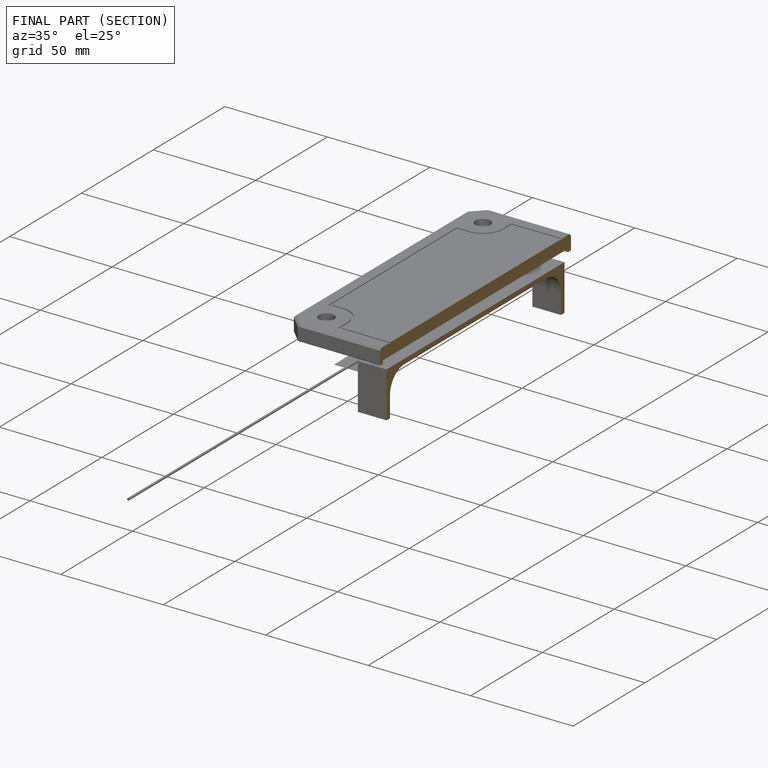
[diagram: finished part — half-section view (interior)]
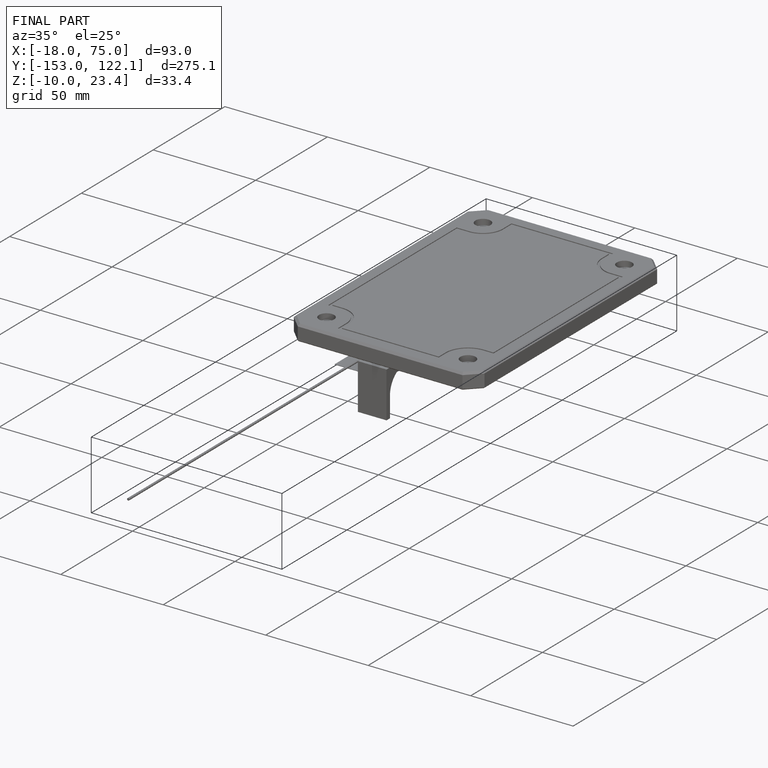
[diagram: finished part — iso view with bounding-box wireframe]
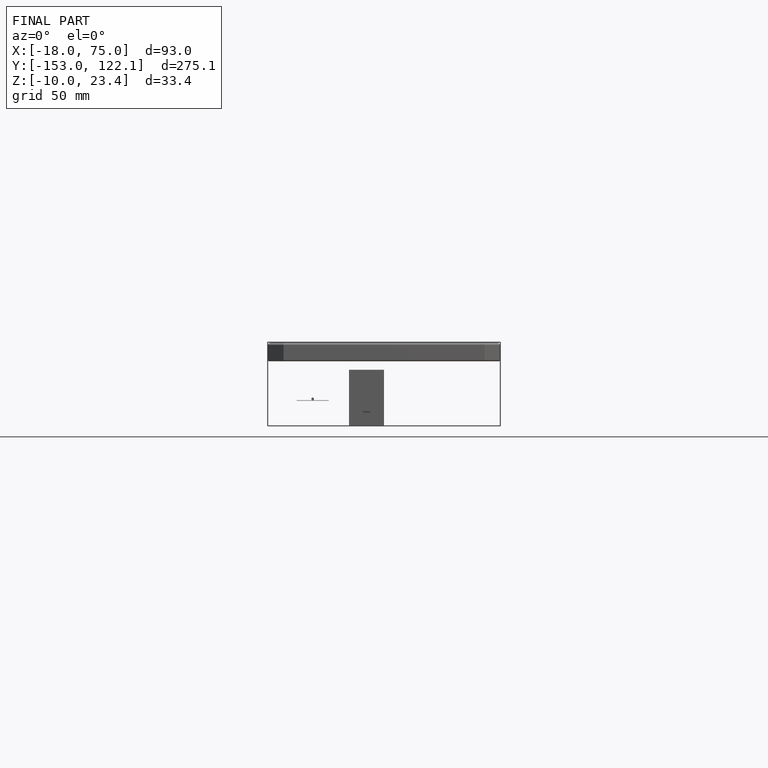
[diagram: finished part — front view with bounding-box wireframe]
